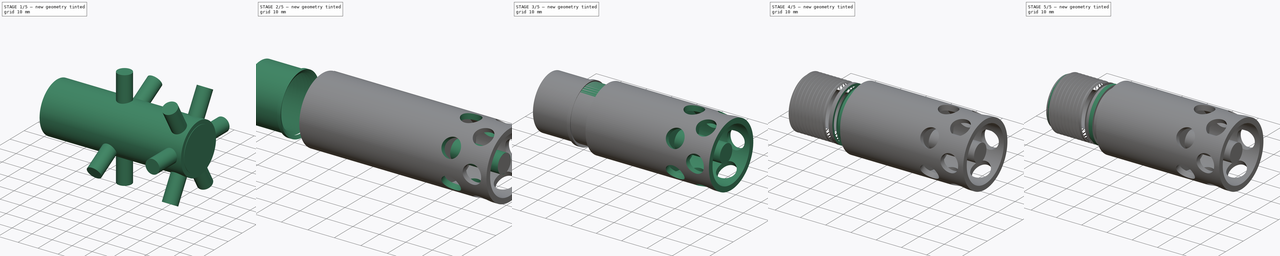
[diagram: build sequence overview — one tinted view per stage of 5, left to right]
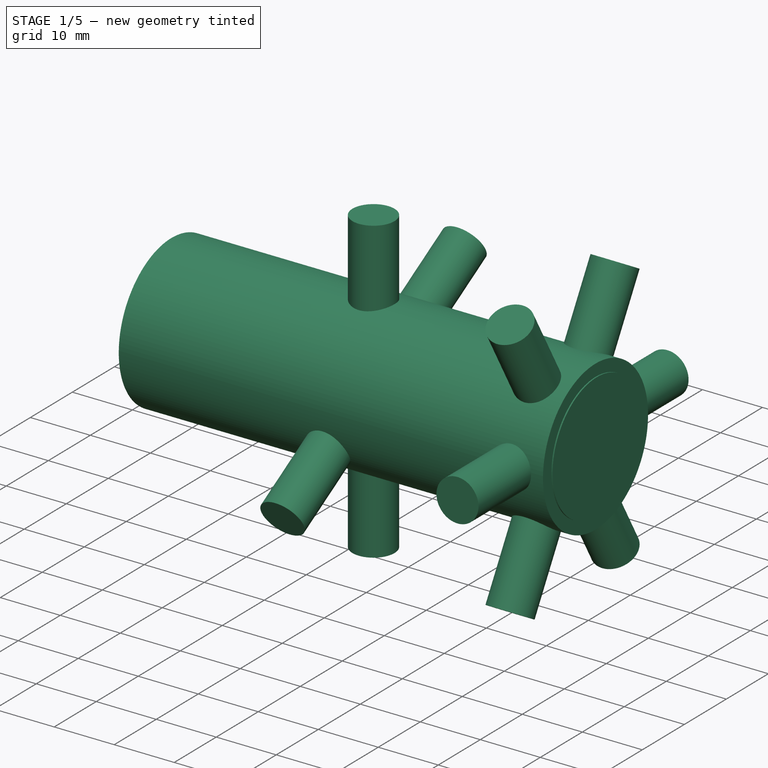
[diagram: stage 1 of 5 — iso view after this stage's code; geometry added in this stage tinted green]
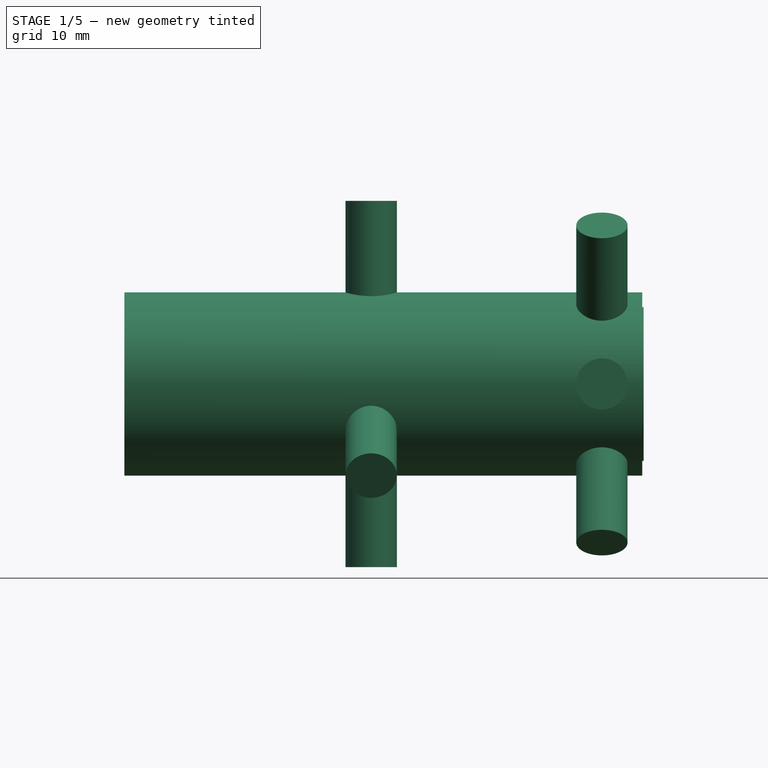
[diagram: stage 1 of 5 — front view after this stage's code; geometry added in this stage tinted green]
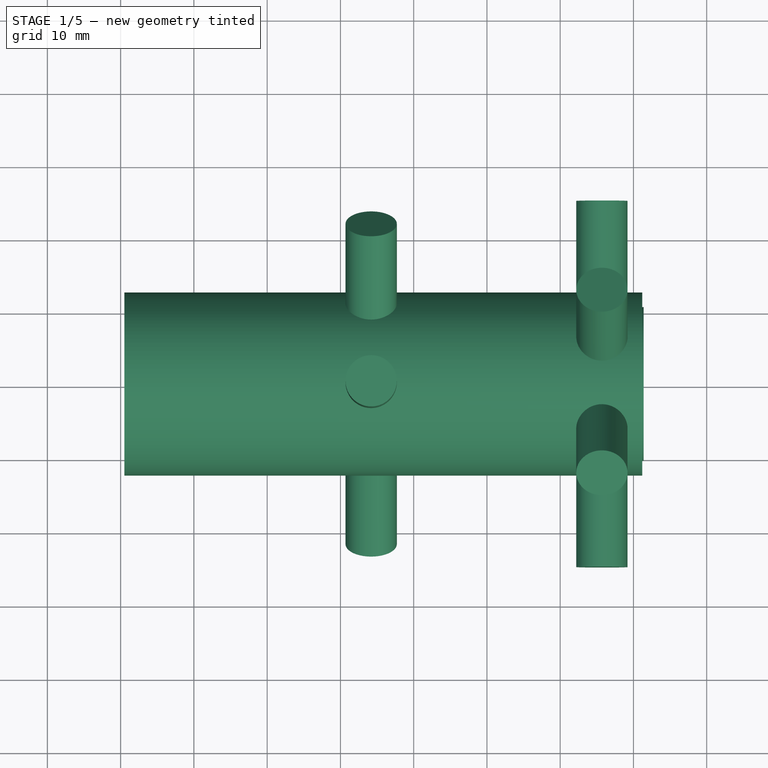
[diagram: stage 1 of 5 — top view after this stage's code; geometry added in this stage tinted green]
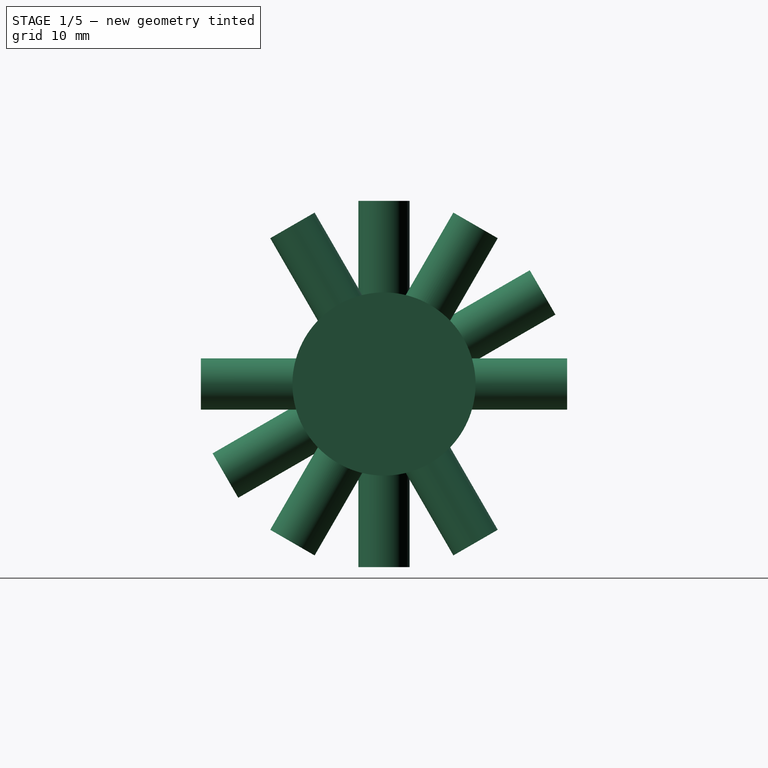
[diagram: stage 1 of 5 — right view after this stage's code; geometry added in this stage tinted green]
FCSTD DOCUMENT  (FreeCAD 0.17R13541 (Git))
Label: ERG-T-01-SH
License: All rights reserved
LicenseURL: http://en.wikipedia.org/wiki/All_rights_reserved
objects: Drawing::FeatureViewPython×66, Part::Cylinder×20, Part::Cut×18, Part::MultiFuse×4, Drawing::FeatureViewPart×4, Part::Helix×2, Sketcher::SketchObject×2, Part::Cone×2, Part::Sweep×2, Drawing::FeaturePage×2, Part::Feature×1
note: 51 computed .brp shape members not serialized (recipe doc carries the construction recipe); baked Part::Feature solids carry a one-line shape summary decoded from their .brp

FEATURE [Part::Cylinder] Cylinder068  label="Cylinder073"
  Angle = 360
  AttacherType = Attacher::AttachEngine3D
  Height = 50
  Placement = pos=(214.2,0,-25) rot=(0,1,0;0rad)
  Radius = 3.5
FEATURE [Drawing::FeatureViewPython] dim088  # drawing view (typed FeaturePython)
  Rotation = 0
  ViewResult = <g> \n  <line x1="244.262000" y1="62.750000" x2="219.353101" y2="62.750000" style="stroke:rgb(255,0,0);stroke-width:0.10" />\n<line x1="244.864312" y1="100.240250" x2="219.353101" y2="100.240250" style="stroke:rgb(255,0,0);stroke-width:0.10" />\n<line x1="220.353101" y1="62.750000" x2="220.353101" y2="100.240250" style="stroke:rgb(255,0,0);stroke-width:0.10" /> \n  <polygon points="220.353101,100.240250 220.853101,98.240250 220.353101,97.740250 219.853101,98.240250" style="fill:rgb(255,0,0);stroke:rgb(255,0,0);stroke-width:0" /><polygon points="220.353101,62.750000 219.853101,64.750000 220.353101,65.250000 220.853101,64.750000" style="fill:rgb(255,0,0);stroke:rgb(255,0,0);stroke-width:0" /> \n  <text x="218.353101" y="81.495125" font-family="inherit" font-size="3.6" fill="rgb(0,0,0)" text-anchor="middle" transform="rotate(-90.000000 218.353101,81.495125)" >25</text> </g>
  Visible = false
  X = 0
  Y = 0
  arrowL1 = 2
  arrowL2 = 0.5
  arrowW = 1
  arrow_scheme = 0
  autoPlaceOffset = 2
  autoPlaceText = true
  click1_x = 220.353
  click1_y = 99.2911
  click2_x = 220.353
  click2_y = 99.2911
  comma_decimal_place = false
  dimension_line_overshoot = 1
  gap_datum_points = 0
  halfDimension_linear = false
  lineColor = rgb(255,0,0)
  strokeWidth = 0.1
  textFormat_linear = %(value)3.1f
  textRenderer_color = rgb(0,0,0)
  textRenderer_family = inherit
  textRenderer_size = 3.6
  unit_custom_scale = 1
  unit_scheme = 0
FEATURE [Drawing::FeatureViewPython] dia020  # drawing view (typed FeaturePython)
  Rotation = 0
  ViewResult = <g>  <circle cx ="244.262000" cy ="94.250000" r="0.250000" stroke="none" fill="rgb(255,0,0)" /> \n<line x1="262.603225" y1="114.471753" x2="243.707743" y2="93.638915" style="stroke:rgb(255,0,0);stroke-width:0.10" />\n<polygon points="244.816257,94.861085 245.789555,96.678415 246.495822,96.712857 246.530264,96.006589" style="fill:rgb(255,0,0);stroke:rgb(255,0,0);stroke-width:0" />\n<polygon points="243.707743,93.638915 242.734445,91.821585 242.028178,91.787143 241.993736,92.493411" style="fill:rgb(255,0,0);stroke:rgb(255,0,0);stroke-width:0" />\n<line x1="262.603225" y1="114.471753" x2="273.009748" y2="114.471753" style="stroke:rgb(255,0,0);stroke-width:0.10" />\n<text x="267.806487" y="112.471753" font-family="inherit" font-size="3.6" fill="rgb(0,0,0)" text-anchor="middle" transform="rotate(0.000000 267.806487,112.471753)" >Ø1.1</text> </g>
  Visible = false
  X = 0
  Y = 0
  arrowL1 = 2
  arrowL2 = 0.5
  arrowW = 1
  arrow_scheme = 0
  autoPlaceOffset = 2
  autoPlaceText = true
  centerPointDia = 0.5
  click1_x = 262.603
  click1_y = 114.472
  click2_x = 273.01
  click2_y = 113.969
  click3_x = 273.01
  click3_y = 113.969
  comma_decimal_place = false
  lineColor = rgb(255,0,0)
  strokeWidth = 0.1
  textFormat_circular = Ø%(value)3.3f
  textRenderer_color = rgb(0,0,0)
  textRenderer_family = inherit
  textRenderer_size = 3.6
  unit_custom_scale = 1.7
  unit_scheme = 0
FEATURE [Drawing::FeatureViewPython] dim090  # drawing view (typed FeaturePython)
  Rotation = 0
  ViewResult = <g> \n  <line x1="179.589000" y1="65.903600" x2="209.559098" y2="65.903600" style="stroke:rgb(255,0,0);stroke-width:0.10" />\n<line x1="180.189000" y1="97.099700" x2="209.559098" y2="97.099700" style="stroke:rgb(255,0,0);stroke-width:0.10" />\n<line x1="208.559098" y1="65.903600" x2="208.559098" y2="97.099700" style="stroke:rgb(255,0,0);stroke-width:0.10" /> \n  <polygon points="208.559098,97.099700 209.059098,95.099700 208.559098,94.599700 208.059098,95.099700" style="fill:rgb(255,0,0);stroke:rgb(255,0,0);stroke-width:0" /><polygon points="208.559098,65.903600 208.059098,67.903600 208.559098,68.403600 209.059098,67.903600" style="fill:rgb(255,0,0);stroke:rgb(255,0,0);stroke-width:0" /> \n  <text x="206.559098" y="81.501650" font-family="inherit" font-size="3.6" fill="rgb(0,0,0)" text-anchor="middle" transform="rotate(-90.000000 206.559098,81.501650)" >20.8</text> </g>
  Visible = false
  X = 0
  Y = 0
  arrowL1 = 2
  arrowL2 = 0.5
  arrowW = 1
  arrow_scheme = 0
  autoPlaceOffset = 2
  autoPlaceText = true
  click1_x = 208.559
  click1_y = 92.6505
  click2_x = 208.559
  click2_y = 92.6505
  comma_decimal_place = false
  dimension_line_overshoot = 1
  gap_datum_points = 0
  halfDimension_linear = false
  lineColor = rgb(255,0,0)
  strokeWidth = 0.1
  textFormat_linear = %(value)3.1f
  textRenderer_color = rgb(0,0,0)
  textRenderer_family = inherit
  textRenderer_size = 3.6
  unit_custom_scale = 1.7
  unit_scheme = 0
FEATURE [Drawing::FeatureViewPython] dim089  # drawing view (typed FeaturePython)
  Rotation = 0
  ViewResult = <g> \n  <line x1="181.725000" y1="97.079000" x2="164.616125" y2="97.079000" style="stroke:rgb(255,0,0);stroke-width:0.10" />\n<line x1="180.964500" y1="95.763560" x2="164.616125" y2="95.763560" style="stroke:rgb(255,0,0);stroke-width:0.10" />\n<line x1="165.616125" y1="97.079000" x2="165.616125" y2="95.763560" style="stroke:rgb(255,0,0);stroke-width:0.10" /> \n  <polygon points="165.616125,95.763560 166.116125,93.763560 165.616125,93.263560 165.116125,93.763560" style="fill:rgb(255,0,0);stroke:rgb(255,0,0);stroke-width:0" /><polygon points="165.616125,97.079000 165.116125,99.079000 165.616125,99.579000 166.116125,99.079000" style="fill:rgb(255,0,0);stroke:rgb(255,0,0);stroke-width:0" /> \n  <text x="163.616125" y="96.421280" font-family="inherit" font-size="3.6" fill="rgb(0,0,0)" text-anchor="middle" transform="rotate(-90.000000 163.616125,96.421280)" >1</text> </g>
  Visible = false
  X = 0
  Y = 0
  arrowL1 = 2
  arrowL2 = 0.5
  arrowW = 1
  arrow_scheme = 0
  autoPlaceOffset = 2
  autoPlaceText = true
  click1_x = 165.616
  click1_y = 96.2869
  click2_x = 165.616
  click2_y = 96.2869
  comma_decimal_place = false
  dimension_line_overshoot = 1
  gap_datum_points = 0
  halfDimension_linear = false
  lineColor = rgb(255,0,0)
  strokeWidth = 0.1
  textFormat_linear = 1
  textRenderer_color = rgb(0,0,0)
  textRenderer_family = inherit
  textRenderer_size = 3.6
  unit_custom_scale = 1.7
  unit_scheme = 0
FEATURE [Drawing::FeatureViewPython] dim091  # drawing view (typed FeaturePython)
  Rotation = 0
  ViewResult = <g> \n  <line x1="95.475000" y1="63.220100" x2="95.475000" y2="37.514572" style="stroke:rgb(255,0,0);stroke-width:0.10" />\n<line x1="201.525000" y1="67.972880" x2="201.525000" y2="37.514572" style="stroke:rgb(255,0,0);stroke-width:0.10" />\n<line x1="95.475000" y1="38.514572" x2="201.525000" y2="38.514572" style="stroke:rgb(255,0,0);stroke-width:0.10" /> \n  <polygon points="201.525000,38.514572 199.525000,38.014572 199.025000,38.514572 199.525000,39.014572" style="fill:rgb(255,0,0);stroke:rgb(255,0,0);stroke-width:0" /><polygon points="95.475000,38.514572 97.475000,39.014572 97.975000,38.514572 97.475000,38.014572" style="fill:rgb(255,0,0);stroke:rgb(255,0,0);stroke-width:0" /> \n  <text x="148.500000" y="36.514572" font-family="inherit" font-size="3.6" fill="rgb(0,0,0)" text-anchor="middle" transform="rotate(0.000000 148.500000,36.514572)" >70.7</text> </g>
  Visible = false
  X = 0
  Y = 0
  arrowL1 = 2
  arrowL2 = 0.5
  arrowW = 1
  arrow_scheme = 0
  autoPlaceOffset = 2
  autoPlaceText = true
  click1_x = 197.195
  click1_y = 38.5146
  click2_x = 197.195
  click2_y = 38.5146
  comma_decimal_place = false
  dimension_line_overshoot = 1
  gap_datum_points = 0
  halfDimension_linear = false
  lineColor = rgb(255,0,0)
  strokeWidth = 0.1
  textFormat_linear = %(value)3.3f
  textRenderer_color = rgb(0,0,0)
  textRenderer_family = inherit
  textRenderer_size = 3.6
  unit_custom_scale = 1.7
  unit_scheme = 0
FEATURE [Drawing::FeatureViewPython] dim093  # drawing view (typed FeaturePython)
  Rotation = 0
  ViewResult = <g> \n  <line x1="95.475000" y1="62.750000" x2="84.981082" y2="62.750000" style="stroke:rgb(255,0,0);stroke-width:0.10" />\n<line x1="95.475000" y1="100.250000" x2="84.981082" y2="100.250000" style="stroke:rgb(255,0,0);stroke-width:0.10" />\n<line x1="85.981082" y1="62.750000" x2="85.981082" y2="100.250000" style="stroke:rgb(255,0,0);stroke-width:0.10" /> \n  <polygon points="85.981082,100.250000 86.481082,98.250000 85.981082,97.750000 85.481082,98.250000" style="fill:rgb(255,0,0);stroke:rgb(255,0,0);stroke-width:0" /><polygon points="85.981082,62.750000 85.481082,64.750000 85.981082,65.250000 86.481082,64.750000" style="fill:rgb(255,0,0);stroke:rgb(255,0,0);stroke-width:0" /> \n  <text x="83.981082" y="81.500000" font-family="inherit" font-size="3.6" fill="rgb(0,0,0)" text-anchor="middle" transform="rotate(-90.000000 83.981082,81.500000)" >25</text> </g>
  Visible = false
  X = 0
  Y = 0
  arrowL1 = 2
  arrowL2 = 0.5
  arrowW = 1
  arrow_scheme = 0
  autoPlaceOffset = 2
  autoPlaceText = true
  click1_x = 85.9811
  click1_y = 101.227
  click2_x = 85.9811
  click2_y = 101.227
  comma_decimal_place = false
  dimension_line_overshoot = 1
  gap_datum_points = 0
  halfDimension_linear = false
  lineColor = rgb(255,0,0)
  strokeWidth = 0.1
  textFormat_linear = %(value)3.3f
  textRenderer_color = rgb(0,0,0)
  textRenderer_family = inherit
  textRenderer_size = 3.6
  unit_custom_scale = 1.7
  unit_scheme = 0
FEATURE [Part::Cylinder] Cylinder066  label="Cylinder071"
  Angle = 360
  AttacherType = Attacher::AttachEngine3D
  Height = 50
  Placement = pos=(214.2,21.6506,12.5) rot=(1,0,0;2.0944rad)
  Radius = 3.5
FEATURE [Drawing::FeatureViewPython] dia019  # drawing view (typed FeaturePython)
  Rotation = 0
  ViewResult = <g>  <circle cx ="52.693090" cy ="81.339834" r="0.250000" stroke="none" fill="rgb(255,0,0)" /> \n<line x1="65.311048" y1="134.419249" x2="48.395157" y2="63.259905" style="stroke:rgb(255,0,0);stroke-width:0.10" />\n<polygon points="56.991023,99.419762 57.014920,97.358348 56.412839,96.987541 56.042031,97.589622" style="fill:rgb(255,0,0);stroke:rgb(255,0,0);stroke-width:0" />\n<polygon points="48.395157,63.259905 48.371260,65.321319 48.973341,65.692127 49.344149,65.090046" style="fill:rgb(255,0,0);stroke:rgb(255,0,0);stroke-width:0" />\n<line x1="65.311048" y1="134.419249" x2="82.271669" y2="134.419249" style="stroke:rgb(255,0,0);stroke-width:0.10" />\n<text x="73.791358" y="132.419249" font-family="inherit" font-size="3.6" fill="rgb(0,0,0)" text-anchor="middle" transform="rotate(0.000000 73.791358,132.419249)" >Ø 25</text> </g>
  Visible = false
  X = 0
  Y = 0
  arrowL1 = 2
  arrowL2 = 0.5
  arrowW = 1
  arrow_scheme = 0
  autoPlaceOffset = 2
  autoPlaceText = true
  centerPointDia = 0.5
  click1_x = 65.311
  click1_y = 134.419
  click2_x = 82.2717
  click2_y = 134.672
  click3_x = 82.2717
  click3_y = 134.672
  comma_decimal_place = false
  lineColor = rgb(255,0,0)
  strokeWidth = 0.1
  textFormat_circular = Ø%(value)3.0f
  textRenderer_color = rgb(0,0,0)
  textRenderer_family = inherit
  textRenderer_size = 3.6
  unit_custom_scale = 1.7
  unit_scheme = 0
FEATURE [Part::Cylinder] Cylinder069  label="Cylinder074"
  Angle = 360
  AttacherType = Attacher::AttachEngine3D
  Height = 50
  Placement = pos=(214.2,21.6506,12.5) rot=(1,0,0;2.0944rad)
  Radius = 3.5
FEATURE [Part::Cylinder] Cylinder057  label="Cylinder063"
  Angle = 360
  AttacherType = Attacher::AttachEngine3D
  Height = 70.7
  Placement = pos=(180.5,0,0) rot=(0,1,0;1.5708rad)
  Radius = 12.5
FEATURE [Drawing::FeatureViewPython] dim076  # drawing view (typed FeaturePython)
  Rotation = 0
  ViewResult = <g> \n  <line x1="168.525000" y1="97.100000" x2="168.525000" y2="109.514916" style="stroke:rgb(255,0,0);stroke-width:0.10" />\n<line x1="170.775000" y1="96.708950" x2="170.775000" y2="109.514916" style="stroke:rgb(255,0,0);stroke-width:0.10" />\n<line x1="168.525000" y1="108.514916" x2="170.775000" y2="108.514916" style="stroke:rgb(255,0,0);stroke-width:0.10" /> \n  <polygon points="170.775000,108.514916 172.775000,109.014916 173.275000,108.514916 172.775000,108.014916" style="fill:rgb(255,0,0);stroke:rgb(255,0,0);stroke-width:0" /><polygon points="168.525000,108.514916 166.525000,108.014916 166.025000,108.514916 166.525000,109.014916" style="fill:rgb(255,0,0);stroke:rgb(255,0,0);stroke-width:0" /> \n  <text x="169.650000" y="106.514916" font-family="inherit" font-size="3.6" fill="rgb(0,0,0)" text-anchor="middle" transform="rotate(0.000000 169.650000,106.514916)" >1.5</text> </g>
  Visible = false
  X = 0
  Y = 0
  arrowL1 = 2
  arrowL2 = 0.5
  arrowW = 1
  arrow_scheme = 0
  autoPlaceOffset = 2
  autoPlaceText = true
  click1_x = 170.148
  click1_y = 108.515
  click2_x = 170.148
  click2_y = 108.515
  comma_decimal_place = false
  dimension_line_overshoot = 1
  gap_datum_points = 0
  halfDimension_linear = false
  lineColor = rgb(255,0,0)
  strokeWidth = 0.1
  textFormat_linear = %(value)3.3f
  textRenderer_color = rgb(0,0,0)
  textRenderer_family = inherit
  textRenderer_size = 3.6
  unit_custom_scale = 1
  unit_scheme = 0
FEATURE [Drawing::FeatureViewPython] dim077  # drawing view (typed FeaturePython)
  Rotation = 0
  ViewResult = <g> \n  <line x1="173.025000" y1="97.100000" x2="173.025000" y2="116.291672" style="stroke:rgb(255,0,0);stroke-width:0.10" />\n<line x1="175.275000" y1="97.100000" x2="175.275000" y2="116.291672" style="stroke:rgb(255,0,0);stroke-width:0.10" />\n<line x1="173.025000" y1="115.291672" x2="175.275000" y2="115.291672" style="stroke:rgb(255,0,0);stroke-width:0.10" /> \n  <polygon points="175.275000,115.291672 177.275000,115.791672 177.775000,115.291672 177.275000,114.791672" style="fill:rgb(255,0,0);stroke:rgb(255,0,0);stroke-width:0" /><polygon points="173.025000,115.291672 171.025000,114.791672 170.525000,115.291672 171.025000,115.791672" style="fill:rgb(255,0,0);stroke:rgb(255,0,0);stroke-width:0" /> \n  <text x="174.150000" y="113.291672" font-family="inherit" font-size="3.6" fill="rgb(0,0,0)" text-anchor="middle" transform="rotate(0.000000 174.150000,113.291672)" >1.5</text> </g>
  Visible = false
  X = 0
  Y = 0
  arrowL1 = 2
  arrowL2 = 0.5
  arrowW = 1
  arrow_scheme = 0
  autoPlaceOffset = 2
  autoPlaceText = true
  click1_x = 174.476
  click1_y = 115.292
  click2_x = 174.476
  click2_y = 115.292
  comma_decimal_place = false
  dimension_line_overshoot = 1
  gap_datum_points = 0
  halfDimension_linear = false
  lineColor = rgb(255,0,0)
  strokeWidth = 0.1
  textFormat_linear = %(value)3.3f
  textRenderer_color = rgb(0,0,0)
  textRenderer_family = inherit
  textRenderer_size = 3.6
  unit_custom_scale = 1
  unit_scheme = 0
FEATURE [Drawing::FeatureViewPython] dim078  # drawing view (typed FeaturePython)
  Rotation = 0
  ViewResult = <g> \n  <line x1="177.525000" y1="97.100000" x2="177.525000" y2="109.514916" style="stroke:rgb(255,0,0);stroke-width:0.10" />\n<line x1="180.189000" y1="97.099700" x2="180.189000" y2="109.514916" style="stroke:rgb(255,0,0);stroke-width:0.10" />\n<line x1="177.525000" y1="108.514916" x2="180.189000" y2="108.514916" style="stroke:rgb(255,0,0);stroke-width:0.10" /> \n  <polygon points="180.189000,108.514916 182.189000,109.014916 182.689000,108.514916 182.189000,108.014916" style="fill:rgb(255,0,0);stroke:rgb(255,0,0);stroke-width:0" /><polygon points="177.525000,108.514916 175.525000,108.014916 175.025000,108.514916 175.525000,109.014916" style="fill:rgb(255,0,0);stroke:rgb(255,0,0);stroke-width:0" /> \n  <text x="178.857000" y="106.514916" font-family="inherit" font-size="3.6" fill="rgb(0,0,0)" text-anchor="middle" transform="rotate(0.000000 178.857000,106.514916)" >1.8</text> </g>
  Visible = false
  X = 0
  Y = 0
  arrowL1 = 2
  arrowL2 = 0.5
  arrowW = 1
  arrow_scheme = 0
  autoPlaceOffset = 2
  autoPlaceText = true
  click1_x = 180.01
  click1_y = 108.515
  click2_x = 180.01
  click2_y = 108.515
  comma_decimal_place = false
  dimension_line_overshoot = 1
  gap_datum_points = 0
  halfDimension_linear = false
  lineColor = rgb(255,0,0)
  strokeWidth = 0.1
  textFormat_linear = %(value)3.1f
  textRenderer_color = rgb(0,0,0)
  textRenderer_family = inherit
  textRenderer_size = 3.6
  unit_custom_scale = 1
  unit_scheme = 0
FEATURE [Drawing::FeatureViewPython] dim079  # drawing view (typed FeaturePython)
  Rotation = 0
  ViewResult = <g> \n  <line x1="170.775000" y1="65.900000" x2="170.775000" y2="57.039320" style="stroke:rgb(255,0,0);stroke-width:0.10" />\n<line x1="173.025000" y1="65.900000" x2="173.025000" y2="57.039320" style="stroke:rgb(255,0,0);stroke-width:0.10" />\n<line x1="170.775000" y1="58.039320" x2="173.025000" y2="58.039320" style="stroke:rgb(255,0,0);stroke-width:0.10" /> \n  <polygon points="173.025000,58.039320 175.025000,58.539320 175.525000,58.039320 175.025000,57.539320" style="fill:rgb(255,0,0);stroke:rgb(255,0,0);stroke-width:0" /><polygon points="170.775000,58.039320 168.775000,57.539320 168.275000,58.039320 168.775000,58.539320" style="fill:rgb(255,0,0);stroke:rgb(255,0,0);stroke-width:0" /> \n  <text x="171.900000" y="56.039320" font-family="inherit" font-size="3.6" fill="rgb(0,0,0)" text-anchor="middle" transform="rotate(0.000000 171.900000,56.039320)" >1.5</text> </g>
  Visible = false
  X = 0
  Y = 0
  arrowL1 = 2
  arrowL2 = 0.5
  arrowW = 1
  arrow_scheme = 0
  autoPlaceOffset = 2
  autoPlaceText = true
  click1_x = 173.182
  click1_y = 58.0393
  click2_x = 173.182
  click2_y = 58.0393
  comma_decimal_place = false
  dimension_line_overshoot = 1
  gap_datum_points = 0
  halfDimension_linear = false
  lineColor = rgb(255,0,0)
  strokeWidth = 0.1
  textFormat_linear = %(value)3.3f
  textRenderer_color = rgb(0,0,0)
  textRenderer_family = inherit
  textRenderer_size = 3.6
  unit_custom_scale = 1
  unit_scheme = 0
FEATURE [Drawing::FeatureViewPython] dim080  # drawing view (typed FeaturePython)
  Rotation = 0
  ViewResult = <g> \n  <line x1="175.275000" y1="65.900000" x2="175.275000" y2="50.290253" style="stroke:rgb(255,0,0);stroke-width:0.10" />\n<line x1="177.525000" y1="65.900000" x2="177.525000" y2="50.290253" style="stroke:rgb(255,0,0);stroke-width:0.10" />\n<line x1="175.275000" y1="51.290253" x2="177.525000" y2="51.290253" style="stroke:rgb(255,0,0);stroke-width:0.10" /> \n  <polygon points="177.525000,51.290253 179.525000,51.790253 180.025000,51.290253 179.525000,50.790253" style="fill:rgb(255,0,0);stroke:rgb(255,0,0);stroke-width:0" /><polygon points="175.275000,51.290253 173.275000,50.790253 172.775000,51.290253 173.275000,51.790253" style="fill:rgb(255,0,0);stroke:rgb(255,0,0);stroke-width:0" /> \n  <text x="176.400000" y="49.290253" font-family="inherit" font-size="3.6" fill="rgb(0,0,0)" text-anchor="middle" transform="rotate(0.000000 176.400000,49.290253)" >1.5</text> </g>
  Visible = false
  X = 0
  Y = 0
  arrowL1 = 2
  arrowL2 = 0.5
  arrowW = 1
  arrow_scheme = 0
  autoPlaceOffset = 2
  autoPlaceText = true
  click1_x = 177.679
  click1_y = 51.2903
  click2_x = 177.679
  click2_y = 51.2903
  comma_decimal_place = false
  dimension_line_overshoot = 1
  gap_datum_points = 0
  halfDimension_linear = false
  lineColor = rgb(255,0,0)
  strokeWidth = 0.1
  textFormat_linear = %(value)3.3f
  textRenderer_color = rgb(0,0,0)
  textRenderer_family = inherit
  textRenderer_size = 3.6
  unit_custom_scale = 1
  unit_scheme = 0
FEATURE [Drawing::FeatureViewPython] dim081  # drawing view (typed FeaturePython)
  Rotation = 0
  ViewResult = <g> \n  <line x1="170.775000" y1="65.900000" x2="163.810101" y2="65.900000" style="stroke:rgb(255,0,0);stroke-width:0.10" />\n<line x1="170.775000" y1="67.100000" x2="163.810101" y2="67.100000" style="stroke:rgb(255,0,0);stroke-width:0.10" />\n<line x1="164.810101" y1="65.900000" x2="164.810101" y2="67.100000" style="stroke:rgb(255,0,0);stroke-width:0.10" /> \n  <polygon points="164.810101,67.100000 164.310101,69.100000 164.810101,69.600000 165.310101,69.100000" style="fill:rgb(255,0,0);stroke:rgb(255,0,0);stroke-width:0" /><polygon points="164.810101,65.900000 165.310101,63.900000 164.810101,63.400000 164.310101,63.900000" style="fill:rgb(255,0,0);stroke:rgb(255,0,0);stroke-width:0" /> \n  <text x="162.810101" y="66.500000" font-family="inherit" font-size="3.6" fill="rgb(0,0,0)" text-anchor="middle" transform="rotate(-90.000000 162.810101,66.500000)" >0.8</text> </g>
  Visible = false
  X = 0
  Y = 0
  arrowL1 = 2
  arrowL2 = 0.5
  arrowW = 1
  arrow_scheme = 0
  autoPlaceOffset = 2
  autoPlaceText = true
  click1_x = 164.81
  click1_y = 67.5092
  click2_x = 164.81
  click2_y = 67.5092
  comma_decimal_place = false
  dimension_line_overshoot = 1
  gap_datum_points = 0
  halfDimension_linear = false
  lineColor = rgb(255,0,0)
  strokeWidth = 0.1
  textFormat_linear = %(value)3.3f
  textRenderer_color = rgb(0,0,0)
  textRenderer_family = inherit
  textRenderer_size = 3.6
  unit_custom_scale = 1
  unit_scheme = 0
FEATURE [Part::Cylinder] Cylinder063  label="Cylinder068"
  Angle = 360
  AttacherType = Attacher::AttachEngine3D
  Height = 20.2
  Placement = pos=(231.2,0,0) rot=(0,1,0;1.5708rad)
  Radius = 10.5
FEATURE [Drawing::FeatureViewPython] dia016  # drawing view (typed FeaturePython)
  Rotation = 0
  ViewResult = <g>  <circle cx ="52.737500" cy ="81.500000" r="0.250000" stroke="none" fill="rgb(255,0,0)" /> \n<line x1="68.095627" y1="45.059560" x2="50.698534" y2="86.337883" style="stroke:rgb(255,0,0);stroke-width:0.10" />\n<polygon points="54.776466,76.662117 53.538966,78.310932 53.805530,78.965871 54.460468,78.699307" style="fill:rgb(255,0,0);stroke:rgb(255,0,0);stroke-width:0" />\n<polygon points="50.698534,86.337883 51.936034,84.689068 51.669470,84.034129 51.014532,84.300693" style="fill:rgb(255,0,0);stroke:rgb(255,0,0);stroke-width:0" />\n<line x1="68.095627" y1="45.059560" x2="77.968227" y2="45.059560" style="stroke:rgb(255,0,0);stroke-width:0.10" />\n<text x="73.031927" y="43.059560" font-family="inherit" font-size="3.6" fill="rgb(0,0,0)" text-anchor="middle" transform="rotate(0.000000 73.031927,43.059560)" >Ø7</text> </g>
  Visible = false
  X = 0
  Y = 0
  arrowL1 = 2
  arrowL2 = 0.5
  arrowW = 1
  arrow_scheme = 0
  autoPlaceOffset = 2
  autoPlaceText = true
  centerPointDia = 0.5
  click1_x = 68.0956
  click1_y = 45.0596
  click2_x = 77.9682
  click2_y = 44.8064
  click3_x = 77.9682
  click3_y = 44.8064
  comma_decimal_place = false
  lineColor = rgb(255,0,0)
  strokeWidth = 0.1
  textFormat_circular = Ø%(value)3.3f
  textRenderer_color = rgb(0,0,0)
  textRenderer_family = inherit
  textRenderer_size = 3.6
  unit_custom_scale = 1
  unit_scheme = 0
FEATURE [Drawing::FeatureViewPython] dia018  # drawing view (typed FeaturePython)
  Rotation = 0
  ViewResult = <g>  <circle cx ="117.203125" cy ="81.501965" r="0.250000" stroke="none" fill="rgb(255,0,0)" /> \n<line x1="128.596947" y1="95.941423" x2="113.964499" y2="77.397635" style="stroke:rgb(255,0,0);stroke-width:0.10" />\n<polygon points="120.441751,85.606296 119.595365,83.726500 118.893122,83.643709 118.810331,84.345952" style="fill:rgb(255,0,0);stroke:rgb(255,0,0);stroke-width:0" />\n<polygon points="113.964499,77.397635 114.810885,79.277431 115.513128,79.360222 115.595919,78.657979" style="fill:rgb(255,0,0);stroke:rgb(255,0,0);stroke-width:0" />\n<line x1="128.596947" y1="95.941423" x2="142.519844" y2="95.941423" style="stroke:rgb(255,0,0);stroke-width:0.10" />\n<text x="135.558395" y="93.941423" font-family="inherit" font-size="3.6" fill="rgb(0,0,0)" text-anchor="middle" transform="rotate(0.000000 135.558395,93.941423)" >Ø7</text> </g>
  Visible = false
  X = 0
  Y = 0
  arrowL1 = 2
  arrowL2 = 0.5
  arrowW = 1
  arrow_scheme = 0
  autoPlaceOffset = 2
  autoPlaceText = true
  centerPointDia = 0.5
  click1_x = 128.597
  click1_y = 95.9414
  click2_x = 142.52
  click2_y = 95.9414
  click3_x = 140.52
  click3_y = 174773072
  comma_decimal_place = false
  lineColor = rgb(255,0,0)
  strokeWidth = 0.1
  textFormat_circular = Ø%(value)3.1f
  textRenderer_color = rgb(0,0,0)
  textRenderer_family = inherit
  textRenderer_size = 3.6
  unit_custom_scale = 1
  unit_scheme = 0
FEATURE [Drawing::FeatureViewPython] dia021  # drawing view (typed FeaturePython)
  Rotation = 0
  ViewResult = <g>  <circle cx ="244.262000" cy ="68.750000" r="0.250000" stroke="none" fill="rgb(255,0,0)" /> \n<line x1="255.349161" y1="51.798917" x2="243.810412" y2="69.440430" style="stroke:rgb(255,0,0);stroke-width:0.10" />\n<polygon points="244.713588,68.059570 246.226789,66.659491 246.082037,65.967359 245.389905,66.112111" style="fill:rgb(255,0,0);stroke:rgb(255,0,0);stroke-width:0" />\n<polygon points="243.810412,69.440430 242.297211,70.840509 242.441963,71.532641 243.134095,71.387889" style="fill:rgb(255,0,0);stroke:rgb(255,0,0);stroke-width:0" />\n<line x1="255.349161" y1="51.798917" x2="265.607212" y2="51.798917" style="stroke:rgb(255,0,0);stroke-width:0.10" />\n<text x="260.478187" y="49.798917" font-family="inherit" font-size="3.6" fill="rgb(0,0,0)" text-anchor="middle" transform="rotate(0.000000 260.478187,49.798917)" >Ø1.1</text> </g>
  Visible = false
  X = 0
  Y = 0
  arrowL1 = 2
  arrowL2 = 0.5
  arrowW = 1
  arrow_scheme = 0
  autoPlaceOffset = 2
  autoPlaceText = true
  centerPointDia = 0.5
  click1_x = 255.349
  click1_y = 51.7989
  click2_x = 265.607
  click2_y = 52.138
  click3_x = 265.607
  click3_y = 52.138
  comma_decimal_place = false
  lineColor = rgb(255,0,0)
  strokeWidth = 0.1
  textFormat_circular = Ø%(value)3.3f
  textRenderer_color = rgb(0,0,0)
  textRenderer_family = inherit
  textRenderer_size = 3.6
  unit_custom_scale = 1
  unit_scheme = 0
FEATURE [Drawing::FeatureViewPython] dim075  # drawing view (typed FeaturePython)
  Rotation = 0
  ViewResult = <g> \n  <line x1="95.475000" y1="62.750000" x2="95.475000" y2="51.561912" style="stroke:rgb(255,0,0);stroke-width:0.10" />\n<line x1="168.525000" y1="62.750000" x2="168.525000" y2="51.561912" style="stroke:rgb(255,0,0);stroke-width:0.10" />\n<line x1="95.475000" y1="52.561912" x2="168.525000" y2="52.561912" style="stroke:rgb(255,0,0);stroke-width:0.10" /> \n  <polygon points="168.525000,52.561912 166.525000,52.061912 166.025000,52.561912 166.525000,53.061912" style="fill:rgb(255,0,0);stroke:rgb(255,0,0);stroke-width:0" /><polygon points="95.475000,52.561912 97.475000,53.061912 97.975000,52.561912 97.475000,52.061912" style="fill:rgb(255,0,0);stroke:rgb(255,0,0);stroke-width:0" /> \n  <text x="132.000000" y="50.561912" font-family="inherit" font-size="3.6" fill="rgb(0,0,0)" text-anchor="middle" transform="rotate(0.000000 132.000000,50.561912)" >48.7</text> </g>
  Visible = false
  X = 0
  Y = 0
  arrowL1 = 2
  arrowL2 = 0.5
  arrowW = 1
  arrow_scheme = 0
  autoPlaceOffset = 2
  autoPlaceText = true
  click1_x = 167.859
  click1_y = 52.5619
  click2_x = 167.859
  click2_y = 52.5619
  comma_decimal_place = false
  dimension_line_overshoot = 1
  gap_datum_points = 0
  halfDimension_linear = false
  lineColor = rgb(255,0,0)
  strokeWidth = 0.1
  textFormat_linear = %(value)3.3f
  textRenderer_color = rgb(0,0,0)
  textRenderer_family = inherit
  textRenderer_size = 3.6
  unit_custom_scale = 1
  unit_scheme = 0
FEATURE [Part::Cylinder] Cylinder055  label="Cylinder059"
  Angle = 360
  AttacherType = Attacher::AttachEngine3D
  Height = 22
  Placement = pos=(180.5,0,0) rot=(0,1,0;1.5708rad)
  Radius = 10.4
FEATURE [Part::Cylinder] Cylinder065  label="Cylinder070"
  Angle = 360
  AttacherType = Attacher::AttachEngine3D
  Height = 50
  Placement = pos=(214.2,-21.6506,12.5) rot=(-1,0,0;2.0944rad)
  Radius = 3.5
FEATURE [Part::Cylinder] Cylinder064  label="Cylinder069"
  Angle = 360
  AttacherType = Attacher::AttachEngine3D
  Height = 50
  Placement = pos=(214.2,0,-25) rot=(0,1,0;0rad)
  Radius = 3.5
FEATURE [Part::MultiFuse] Fusion012
  Placement = pos=(31.5,0,0) rot=(1,0,0;0.523599rad)
  Shapes = -> [Cylinder064,Cylinder065,Cylinder066]
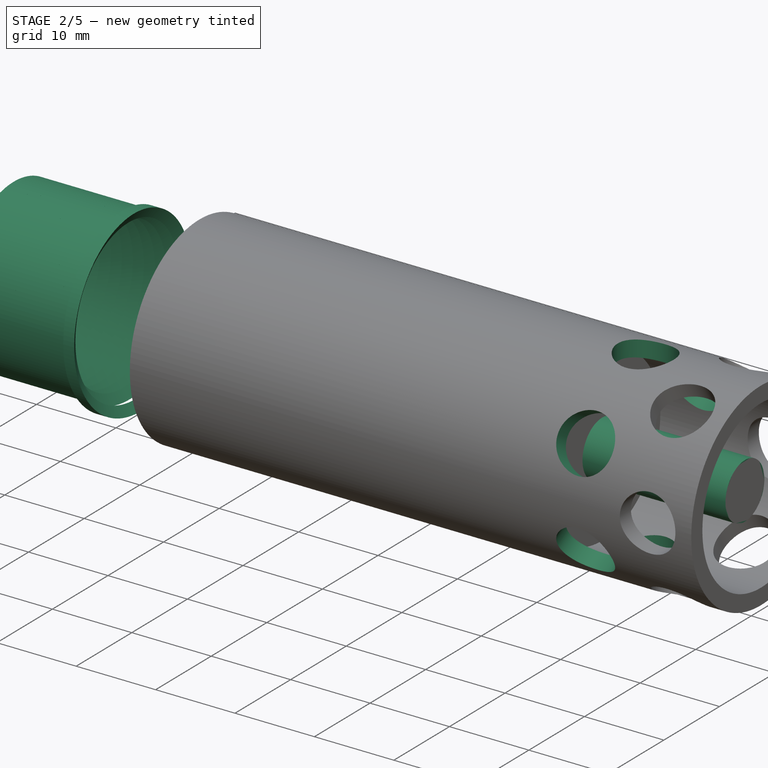
[diagram: stage 2 of 5 — iso view after this stage's code; geometry added in this stage tinted green]
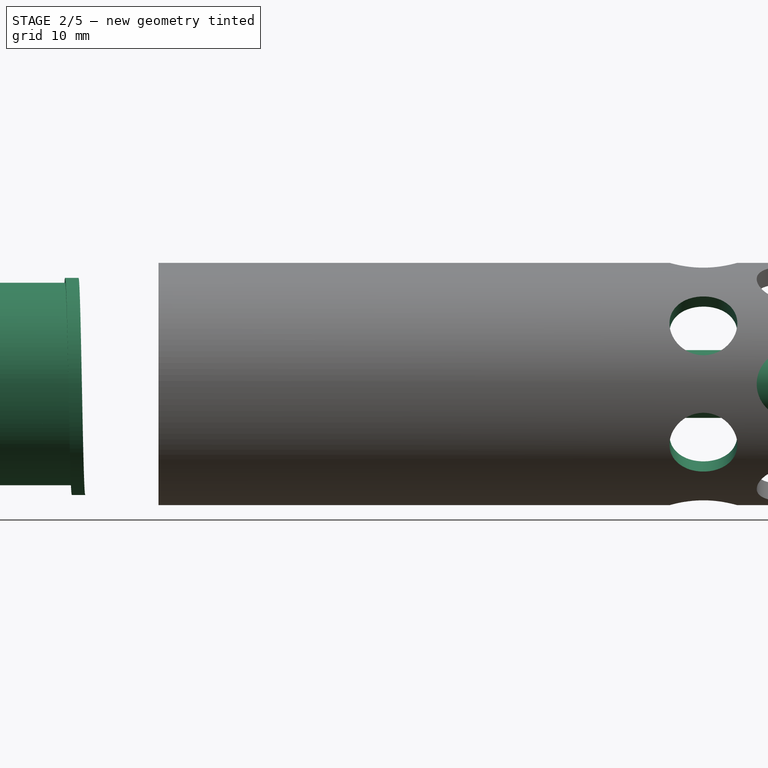
[diagram: stage 2 of 5 — front view after this stage's code; geometry added in this stage tinted green]
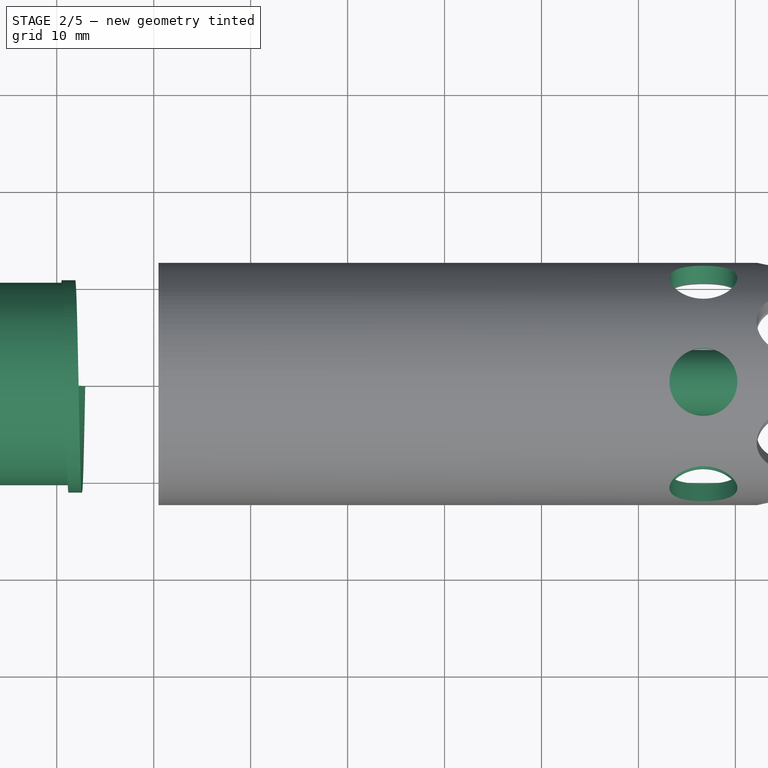
[diagram: stage 2 of 5 — top view after this stage's code; geometry added in this stage tinted green]
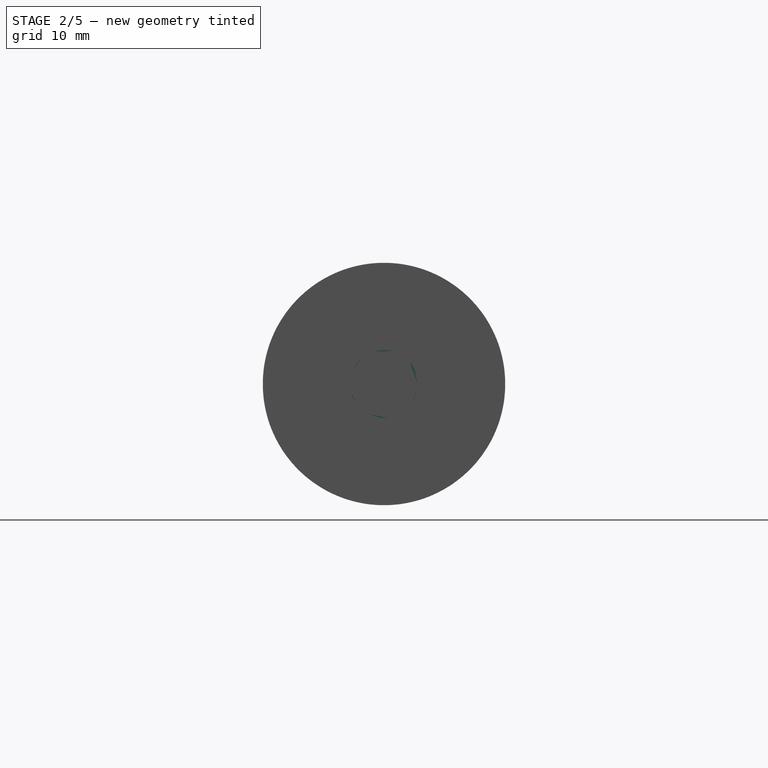
[diagram: stage 2 of 5 — right view after this stage's code; geometry added in this stage tinted green]
FEATURE [Part::Cylinder] Cylinder067  label="Cylinder072"
  Angle = 360
  AttacherType = Attacher::AttachEngine3D
  Height = 50
  Placement = pos=(214.2,-21.6506,12.5) rot=(-1,0,0;2.0944rad)
  Radius = 3.5
FEATURE [Part::Cylinder] Cylinder059  label="Cylinder057"
  Angle = 360
  AttacherType = Attacher::AttachEngine3D
  Height = 18
  Placement = pos=(231.2,0,0) rot=(0,1,0;1.5708rad)
  Radius = 3.5
FEATURE [Part::MultiFuse] Fusion013
  Placement = pos=(22.5,0,0) rot=(1,0,0;0rad)
  Shapes = -> [Cylinder068,Cylinder067,Cylinder069]
FEATURE [Part::Sweep] Sweep014
  Frenet = true
  Sections = -> [Sketch021]
  Solid = true
  Spine = -> Helix017
  Transition = 1
FEATURE [Part::Sweep] Sweep015
  Frenet = true
  Sections = -> [Sketch022]
  Solid = true
  Spine = -> Helix018
  Transition = 1
FEATURE [Part::Cut] Cut052
  Base = -> Cylinder057
  Tool = -> Cylinder063
FEATURE [Part::Cut] Cut053
  Base = -> Cut052
  Tool = -> Fusion012
FEATURE [Part::Cut] Cut054
  Base = -> Cut053
  Tool = -> Fusion013
FEATURE [Part::MultiFuse] Fusion014
  Shapes = -> [Cut054,Cylinder059]
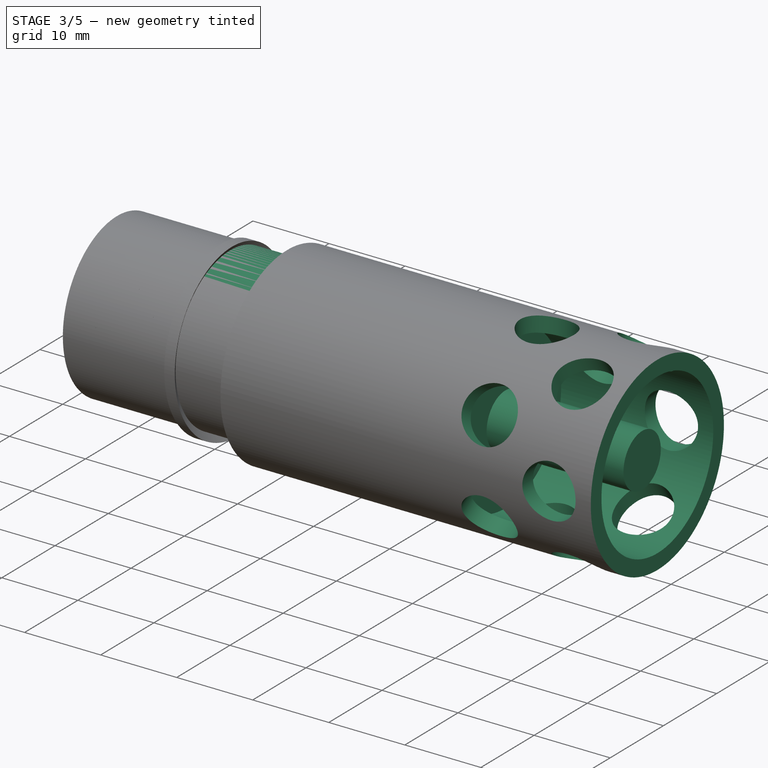
[diagram: stage 3 of 5 — iso view after this stage's code; geometry added in this stage tinted green]
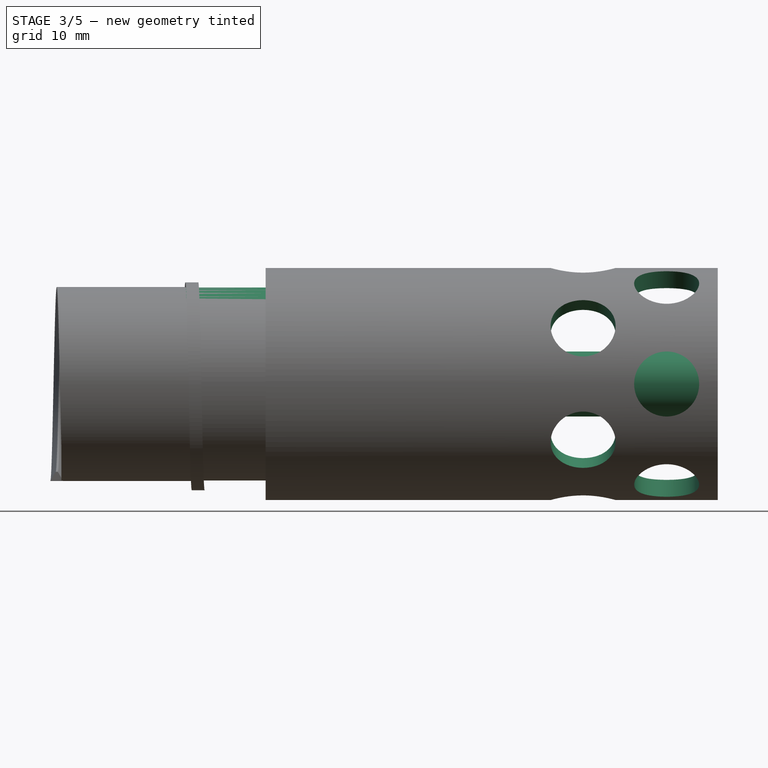
[diagram: stage 3 of 5 — front view after this stage's code; geometry added in this stage tinted green]
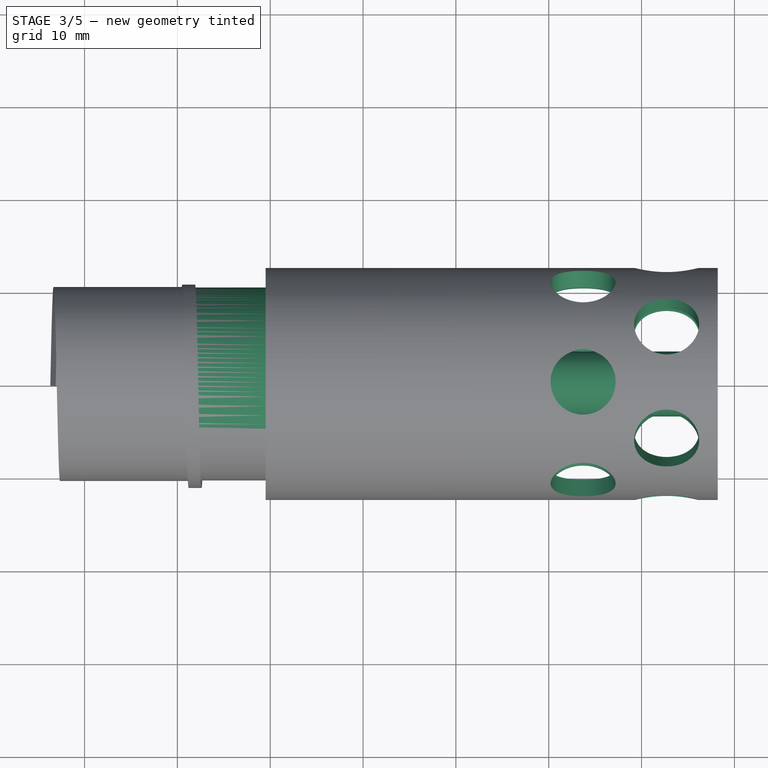
[diagram: stage 3 of 5 — top view after this stage's code; geometry added in this stage tinted green]
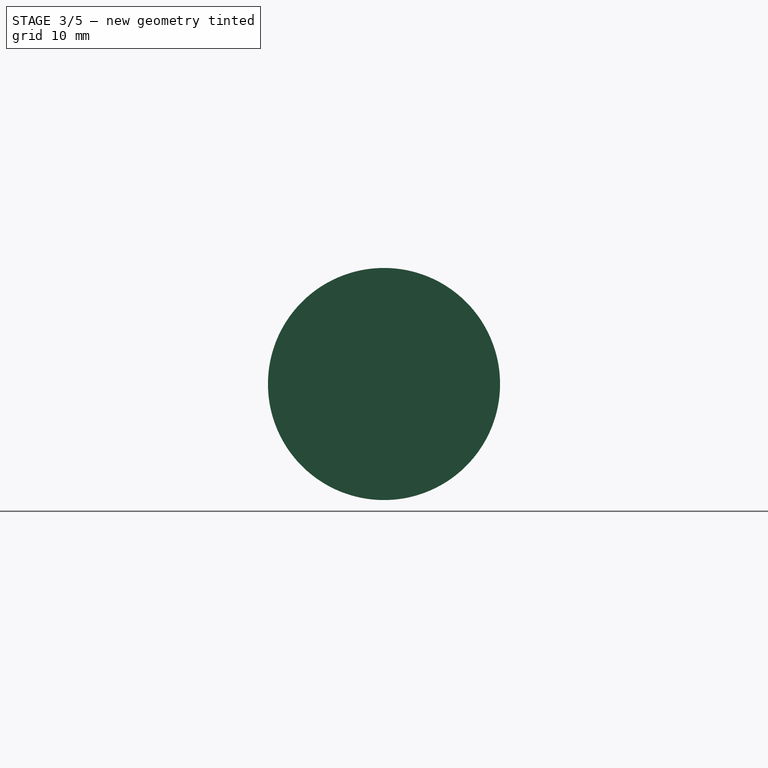
[diagram: stage 3 of 5 — right view after this stage's code; geometry added in this stage tinted green]
FEATURE [Drawing::FeatureViewPython] dim082  # drawing view (typed FeaturePython)
  Rotation = 0
  ViewResult = <g> \n  <line x1="168.525000" y1="100.250000" x2="168.525000" y2="140.807895" style="stroke:rgb(255,0,0);stroke-width:0.10" />\n<line x1="201.525000" y1="95.375000" x2="201.525000" y2="140.807895" style="stroke:rgb(255,0,0);stroke-width:0.10" />\n<line x1="168.525000" y1="139.807895" x2="201.525000" y2="139.807895" style="stroke:rgb(255,0,0);stroke-width:0.10" /> \n  <polygon points="201.525000,139.807895 199.525000,139.307895 199.025000,139.807895 199.525000,140.307895" style="fill:rgb(255,0,0);stroke:rgb(255,0,0);stroke-width:0" /><polygon points="168.525000,139.807895 170.525000,140.307895 171.025000,139.807895 170.525000,139.307895" style="fill:rgb(255,0,0);stroke:rgb(255,0,0);stroke-width:0" /> \n  <text x="185.025000" y="137.807895" font-family="inherit" font-size="3.6" fill="rgb(0,0,0)" text-anchor="middle" transform="rotate(0.000000 185.025000,137.807895)" >22</text> </g>
  Visible = false
  X = 0
  Y = 0
  arrowL1 = 2
  arrowL2 = 0.5
  arrowW = 1
  arrow_scheme = 0
  autoPlaceOffset = 2
  autoPlaceText = true
  click1_x = 186.603
  click1_y = 139.808
  click2_x = 186.603
  click2_y = 139.808
  comma_decimal_place = false
  dimension_line_overshoot = 1
  gap_datum_points = 0
  halfDimension_linear = false
  lineColor = rgb(255,0,0)
  strokeWidth = 0.1
  textFormat_linear = %(value)3.2f
  textRenderer_color = rgb(0,0,0)
  textRenderer_family = inherit
  textRenderer_size = 3.6
  unit_custom_scale = 1
  unit_scheme = 0
FEATURE [Drawing::FeatureViewPython] dim083  # drawing view (typed FeaturePython)
  Rotation = 0
  ViewResult = <g> \n  <line x1="168.525000" y1="96.159335" x2="168.525000" y2="129.776685" style="stroke:rgb(255,0,0);stroke-width:0.10" />\n<line x1="180.114000" y1="95.874245" x2="180.114000" y2="129.776685" style="stroke:rgb(255,0,0);stroke-width:0.10" />\n<line x1="168.525000" y1="128.776685" x2="180.114000" y2="128.776685" style="stroke:rgb(255,0,0);stroke-width:0.10" /> \n  <polygon points="180.114000,128.776685 178.114000,128.276685 177.614000,128.776685 178.114000,129.276685" style="fill:rgb(255,0,0);stroke:rgb(255,0,0);stroke-width:0" /><polygon points="168.525000,128.776685 170.525000,129.276685 171.025000,128.776685 170.525000,128.276685" style="fill:rgb(255,0,0);stroke:rgb(255,0,0);stroke-width:0" /> \n  <text x="174.319500" y="126.776685" font-family="inherit" font-size="3.6" fill="rgb(0,0,0)" text-anchor="middle" transform="rotate(0.000000 174.319500,126.776685)" >7.8</text> </g>
  Visible = false
  X = 0
  Y = 0
  arrowL1 = 2
  arrowL2 = 0.5
  arrowW = 1
  arrow_scheme = 0
  autoPlaceOffset = 2
  autoPlaceText = true
  click1_x = 178.287
  click1_y = 128.777
  click2_x = 178.287
  click2_y = 128.777
  comma_decimal_place = false
  dimension_line_overshoot = 1
  gap_datum_points = 0
  halfDimension_linear = false
  lineColor = rgb(255,0,0)
  strokeWidth = 0.1
  textFormat_linear = 7.8
  textRenderer_color = rgb(0,0,0)
  textRenderer_family = inherit
  textRenderer_size = 3.6
  unit_custom_scale = 1
  unit_scheme = 0
FEATURE [Drawing::FeatureViewPython] dim084  # drawing view (typed FeaturePython)
  Rotation = 0
  ViewResult = <g> \n  <line x1="180.189000" y1="97.099700" x2="180.189000" y2="129.776685" style="stroke:rgb(255,0,0);stroke-width:0.10" />\n<line x1="201.525000" y1="95.027120" x2="201.525000" y2="129.776685" style="stroke:rgb(255,0,0);stroke-width:0.10" />\n<line x1="180.189000" y1="128.776685" x2="201.525000" y2="128.776685" style="stroke:rgb(255,0,0);stroke-width:0.10" /> \n  <polygon points="201.525000,128.776685 199.525000,128.276685 199.025000,128.776685 199.525000,129.276685" style="fill:rgb(255,0,0);stroke:rgb(255,0,0);stroke-width:0" /><polygon points="180.189000,128.776685 182.189000,129.276685 182.689000,128.776685 182.189000,128.276685" style="fill:rgb(255,0,0);stroke:rgb(255,0,0);stroke-width:0" /> \n  <text x="190.857000" y="126.776685" font-family="inherit" font-size="3.6" fill="rgb(0,0,0)" text-anchor="middle" transform="rotate(0.000000 190.857000,126.776685)" >14.2</text> </g>
  Visible = false
  X = 0
  Y = 0
  arrowL1 = 2
  arrowL2 = 0.5
  arrowW = 1
  arrow_scheme = 0
  autoPlaceOffset = 2
  autoPlaceText = true
  click1_x = 199.396
  click1_y = 128.777
  click2_x = 199.396
  click2_y = 128.777
  comma_decimal_place = false
  dimension_line_overshoot = 1
  gap_datum_points = 0
  halfDimension_linear = false
  lineColor = rgb(255,0,0)
  strokeWidth = 0.1
  textFormat_linear = %(value)3.1f
  textRenderer_color = rgb(0,0,0)
  textRenderer_family = inherit
  textRenderer_size = 3.6
  unit_custom_scale = 1
  unit_scheme = 0
FEATURE [Drawing::FeatureViewPython] dim085  # drawing view (typed FeaturePython)
  Rotation = 0
  ViewResult = <g> \n  <line x1="244.262000" y1="79.175000" x2="271.156926" y2="79.175000" style="stroke:rgb(255,0,0);stroke-width:0.10" />\n<line x1="244.262000" y1="83.825000" x2="271.156926" y2="83.825000" style="stroke:rgb(255,0,0);stroke-width:0.10" />\n<line x1="270.156926" y1="79.175000" x2="270.156926" y2="83.825000" style="stroke:rgb(255,0,0);stroke-width:0.10" /> \n  <polygon points="270.156926,83.825000 269.656926,85.825000 270.156926,86.325000 270.656926,85.825000" style="fill:rgb(255,0,0);stroke:rgb(255,0,0);stroke-width:0" /><polygon points="270.156926,79.175000 270.656926,77.175000 270.156926,76.675000 269.656926,77.175000" style="fill:rgb(255,0,0);stroke:rgb(255,0,0);stroke-width:0" /> \n  <text x="268.156926" y="81.500000" font-family="inherit" font-size="3.6" fill="rgb(0,0,0)" text-anchor="middle" transform="rotate(-90.000000 268.156926,81.500000)" >3.1</text> </g>
  Visible = false
  X = 0
  Y = 0
  arrowL1 = 2
  arrowL2 = 0.5
  arrowW = 1
  arrow_scheme = 0
  autoPlaceOffset = 2
  autoPlaceText = true
  click1_x = 270.157
  click1_y = 83.9295
  click2_x = 270.157
  click2_y = 83.9295
  comma_decimal_place = false
  dimension_line_overshoot = 1
  gap_datum_points = 0
  halfDimension_linear = false
  lineColor = rgb(255,0,0)
  strokeWidth = 0.1
  textFormat_linear = %(value)3.3f
  textRenderer_color = rgb(0,0,0)
  textRenderer_family = inherit
  textRenderer_size = 3.6
  unit_custom_scale = 1
  unit_scheme = 0
FEATURE [Drawing::FeatureViewPython] dim086  # drawing view (typed FeaturePython)
  Rotation = 0
  ViewResult = <g> \n  <line x1="244.262000" y1="71.675000" x2="279.210767" y2="71.675000" style="stroke:rgb(255,0,0);stroke-width:0.10" />\n<line x1="244.262000" y1="91.325000" x2="279.210767" y2="91.325000" style="stroke:rgb(255,0,0);stroke-width:0.10" />\n<line x1="278.210767" y1="71.675000" x2="278.210767" y2="91.325000" style="stroke:rgb(255,0,0);stroke-width:0.10" /> \n  <polygon points="278.210767,91.325000 278.710767,89.325000 278.210767,88.825000 277.710767,89.325000" style="fill:rgb(255,0,0);stroke:rgb(255,0,0);stroke-width:0" /><polygon points="278.210767,71.675000 277.710767,73.675000 278.210767,74.175000 278.710767,73.675000" style="fill:rgb(255,0,0);stroke:rgb(255,0,0);stroke-width:0" /> \n  <text x="276.210767" y="81.500000" font-family="inherit" font-size="3.6" fill="rgb(0,0,0)" text-anchor="middle" transform="rotate(-90.000000 276.210767,81.500000)" >13.1</text> </g>
  Visible = false
  X = 0
  Y = 0
  arrowL1 = 2
  arrowL2 = 0.5
  arrowW = 1
  arrow_scheme = 0
  autoPlaceOffset = 2
  autoPlaceText = true
  click1_x = 278.211
  click1_y = 90.0052
  click2_x = 278.211
  click2_y = 90.0052
  comma_decimal_place = false
  dimension_line_overshoot = 1
  gap_datum_points = 0
  halfDimension_linear = false
  lineColor = rgb(255,0,0)
  strokeWidth = 0.1
  textFormat_linear = %(value)3.3f
  textRenderer_color = rgb(0,0,0)
  textRenderer_family = inherit
  textRenderer_size = 3.6
  unit_custom_scale = 1
  unit_scheme = 0
FEATURE [Drawing::FeatureViewPython] dim087  # drawing view (typed FeaturePython)
  Rotation = 0
  ViewResult = <g> \n  <line x1="244.262000" y1="94.250000" x2="286.156852" y2="94.250000" style="stroke:rgb(255,0,0);stroke-width:0.10" />\n<line x1="244.262000" y1="68.750000" x2="286.156852" y2="68.750000" style="stroke:rgb(255,0,0);stroke-width:0.10" />\n<line x1="285.156852" y1="94.250000" x2="285.156852" y2="68.750000" style="stroke:rgb(255,0,0);stroke-width:0.10" /> \n  <polygon points="285.156852,68.750000 284.656852,70.750000 285.156852,71.250000 285.656852,70.750000" style="fill:rgb(255,0,0);stroke:rgb(255,0,0);stroke-width:0" /><polygon points="285.156852,94.250000 285.656852,92.250000 285.156852,91.750000 284.656852,92.250000" style="fill:rgb(255,0,0);stroke:rgb(255,0,0);stroke-width:0" /> \n  <text x="283.156852" y="81.500000" font-family="inherit" font-size="3.6" fill="rgb(0,0,0)" text-anchor="middle" transform="rotate(-90.000000 283.156852,81.500000)" >17</text> </g>
  Visible = false
  X = 0
  Y = 0
  arrowL1 = 2
  arrowL2 = 0.5
  arrowW = 1
  arrow_scheme = 0
  autoPlaceOffset = 2
  autoPlaceText = true
  click1_x = 285.157
  click1_y = 98.3756
  click2_x = 285.157
  click2_y = 98.3756
  comma_decimal_place = false
  dimension_line_overshoot = 1
  gap_datum_points = 0
  halfDimension_linear = false
  lineColor = rgb(255,0,0)
  strokeWidth = 0.1
  textFormat_linear = %(value)3.3f
  textRenderer_color = rgb(0,0,0)
  textRenderer_family = inherit
  textRenderer_size = 3.6
  unit_custom_scale = 1
  unit_scheme = 0
FEATURE [Part::Cylinder] Cylinder051  label="Cylinder053"
  Angle = 360
  AttacherType = Attacher::AttachEngine3D
  Height = 25
  Placement = pos=(150,0,0) rot=(0,1,0;1.5708rad)
  Radius = 9.45
FEATURE [Drawing::FeatureViewPython] dim181  # drawing view (typed FeaturePython)
  Rotation = 0
  ViewResult = <g> \n  <line x1="117.225000" y1="99.713450" x2="117.225000" y2="109.618263" style="stroke:rgb(255,0,0);stroke-width:0.10" />\n<line x1="168.525000" y1="99.779900" x2="168.525000" y2="109.618263" style="stroke:rgb(255,0,0);stroke-width:0.10" />\n<line x1="117.225000" y1="108.618263" x2="168.525000" y2="108.618263" style="stroke:rgb(255,0,0);stroke-width:0.10" /> \n  <polygon points="168.525000,108.618263 166.525000,108.118263 166.025000,108.618263 166.525000,109.118263" style="fill:rgb(255,0,0);stroke:rgb(255,0,0);stroke-width:0" /><polygon points="117.225000,108.618263 119.225000,109.118263 119.725000,108.618263 119.225000,108.118263" style="fill:rgb(255,0,0);stroke:rgb(255,0,0);stroke-width:0" /> \n  <text x="142.875000" y="106.618263" font-family="inherit" font-size="3.6" fill="rgb(0,0,0)" text-anchor="middle" transform="rotate(0.000000 142.875000,106.618263)" >34.2</text> </g>
  Visible = false
  X = 0
  Y = 0
  arrowL1 = 2
  arrowL2 = 0.5
  arrowW = 1
  arrow_scheme = 0
  autoPlaceOffset = 2
  autoPlaceText = true
  click1_x = 166.803
  click1_y = 108.618
  click2_x = 166.803
  click2_y = 108.618
  comma_decimal_place = false
  dimension_line_overshoot = 1
  gap_datum_points = 0
  halfDimension_linear = false
  lineColor = rgb(255,0,0)
  strokeWidth = 0.1
  textFormat_linear = %(value)3.3f
  textRenderer_color = rgb(0,0,0)
  textRenderer_family = inherit
  textRenderer_size = 3.6
  unit_custom_scale = 1
  unit_scheme = 0
FEATURE [Drawing::FeatureViewPython] dim180  # drawing view (typed FeaturePython)
  Rotation = 0
  ViewResult = <g> \n  <line x1="103.725000" y1="95.046635" x2="103.725000" y2="116.364920" style="stroke:rgb(255,0,0);stroke-width:0.10" />\n<line x1="168.525000" y1="100.250000" x2="168.525000" y2="116.364920" style="stroke:rgb(255,0,0);stroke-width:0.10" />\n<line x1="103.725000" y1="115.364920" x2="168.525000" y2="115.364920" style="stroke:rgb(255,0,0);stroke-width:0.10" /> \n  <polygon points="168.525000,115.364920 166.525000,114.864920 166.025000,115.364920 166.525000,115.864920" style="fill:rgb(255,0,0);stroke:rgb(255,0,0);stroke-width:0" /><polygon points="103.725000,115.364920 105.725000,115.864920 106.225000,115.364920 105.725000,114.864920" style="fill:rgb(255,0,0);stroke:rgb(255,0,0);stroke-width:0" /> \n  <text x="136.125000" y="113.364920" font-family="inherit" font-size="3.6" fill="rgb(0,0,0)" text-anchor="middle" transform="rotate(0.000000 136.125000,113.364920)" >43.2</text> </g>
  Visible = false
  X = 0
  Y = 0
  arrowL1 = 2
  arrowL2 = 0.5
  arrowW = 1
  arrow_scheme = 0
  autoPlaceOffset = 2
  autoPlaceText = true
  click1_x = 168.347
  click1_y = 115.365
  click2_x = 168.347
  click2_y = 115.365
  comma_decimal_place = false
  dimension_line_overshoot = 1
  gap_datum_points = 0
  halfDimension_linear = false
  lineColor = rgb(255,0,0)
  strokeWidth = 0.1
  textFormat_linear = %(value)3.3f
  textRenderer_color = rgb(0,0,0)
  textRenderer_family = inherit
  textRenderer_size = 3.6
  unit_custom_scale = 1
  unit_scheme = 0
FEATURE [Drawing::FeatureViewPython] dim182  # drawing view (typed FeaturePython)
  Rotation = 0
  ViewResult = <g> \n  <line x1="95.475000" y1="100.250000" x2="95.475000" y2="110.138877" style="stroke:rgb(255,0,0);stroke-width:0.10" />\n<line x1="103.725000" y1="95.046635" x2="103.725000" y2="110.138877" style="stroke:rgb(255,0,0);stroke-width:0.10" />\n<line x1="95.475000" y1="109.138877" x2="103.725000" y2="109.138877" style="stroke:rgb(255,0,0);stroke-width:0.10" /> \n  <polygon points="103.725000,109.138877 101.725000,108.638877 101.225000,109.138877 101.725000,109.638877" style="fill:rgb(255,0,0);stroke:rgb(255,0,0);stroke-width:0" /><polygon points="95.475000,109.138877 97.475000,109.638877 97.975000,109.138877 97.475000,108.638877" style="fill:rgb(255,0,0);stroke:rgb(255,0,0);stroke-width:0" /> \n  <text x="99.600000" y="107.138877" font-family="inherit" font-size="3.6" fill="rgb(0,0,0)" text-anchor="middle" transform="rotate(0.000000 99.600000,107.138877)" >5.5</text> </g>
  Visible = false
  X = 0
  Y = 0
  arrowL1 = 2
  arrowL2 = 0.5
  arrowW = 1
  arrow_scheme = 0
  autoPlaceOffset = 2
  autoPlaceText = true
  click1_x = 101.57
  click1_y = 109.139
  click2_x = 101.57
  click2_y = 109.139
  comma_decimal_place = false
  dimension_line_overshoot = 1
  gap_datum_points = 0
  halfDimension_linear = false
  lineColor = rgb(255,0,0)
  strokeWidth = 0.1
  textFormat_linear = %(value)3.3f
  textRenderer_color = rgb(0,0,0)
  textRenderer_family = inherit
  textRenderer_size = 3.6
  unit_custom_scale = 1
  unit_scheme = 0
FEATURE [Drawing::FeatureViewPython] dim183  # drawing view (typed FeaturePython)
  Rotation = 0
  ViewResult = <g> \n  <line x1="117.225000" y1="99.713450" x2="117.225000" y2="124.544232" style="stroke:rgb(255,0,0);stroke-width:0.10" />\n<line x1="95.475000" y1="100.250000" x2="95.475000" y2="124.544232" style="stroke:rgb(255,0,0);stroke-width:0.10" />\n<line x1="117.225000" y1="123.544232" x2="95.475000" y2="123.544232" style="stroke:rgb(255,0,0);stroke-width:0.10" /> \n  <polygon points="95.475000,123.544232 97.475000,124.044232 97.975000,123.544232 97.475000,123.044232" style="fill:rgb(255,0,0);stroke:rgb(255,0,0);stroke-width:0" /><polygon points="117.225000,123.544232 115.225000,123.044232 114.725000,123.544232 115.225000,124.044232" style="fill:rgb(255,0,0);stroke:rgb(255,0,0);stroke-width:0" /> \n  <text x="106.350000" y="121.544232" font-family="inherit" font-size="3.6" fill="rgb(0,0,0)" text-anchor="middle" transform="rotate(0.000000 106.350000,121.544232)" >14.5</text> </g>
  Visible = false
  X = 0
  Y = 0
  arrowL1 = 2
  arrowL2 = 0.5
  arrowW = 1
  arrow_scheme = 0
  autoPlaceOffset = 2
  autoPlaceText = true
  click1_x = 96.0764
  click1_y = 123.544
  click2_x = 96.0764
  click2_y = 123.544
  comma_decimal_place = false
  dimension_line_overshoot = 1
  gap_datum_points = 0
  halfDimension_linear = false
  lineColor = rgb(255,0,0)
  strokeWidth = 0.1
  textFormat_linear = %(value)3.3f
  textRenderer_color = rgb(0,0,0)
  textRenderer_family = inherit
  textRenderer_size = 3.6
  unit_custom_scale = 1
  unit_scheme = 0
FEATURE [Part::Cylinder] Cylinder050  label="Cylinder052"
  Angle = 360
  AttacherType = Attacher::AttachEngine3D
  Height = 20.5
  Placement = pos=(226.5,0,0) rot=(0,1,0;1.5708rad)
  Radius = 1.55
FEATURE [Part::Cylinder] Cylinder052  label="Cylinder054"
  Angle = 360
  AttacherType = Attacher::AttachEngine3D
  Height = 46
  Placement = pos=(180.5,0,0) rot=(0,1,0;1.5708rad)
  Radius = 6.55
FEATURE [Part::Cylinder] Cylinder058  label="Cylinder064"
  Angle = 360
  AttacherType = Attacher::AttachEngine3D
  Height = 22
  Placement = pos=(180.5,0,0) rot=(0,1,0;1.5708rad)
  Radius = 12.5
FEATURE [Part::MultiFuse] Fusion011
  Shapes = -> [Cylinder050,Cylinder052]
FEATURE [Part::Cut] Cut037
  Base = -> Sweep014
  Tool = -> Cylinder051
FEATURE [Part::Cut] Cut039
  Base = -> Sweep015
  Tool = -> Cylinder051
FEATURE [Part::Cut] Cut045
  Base = -> Cylinder058
  Tool = -> Cylinder055
FEATURE [Part::Cut] Cut055
  Base = -> Fusion014
  Tool = -> Fusion011
FEATURE [Part::Cut] Cut056
  Base = -> Cut055
  Placement = pos=(-23,0,0) rot=(0,0,1;0rad)
  Tool = -> Cut045
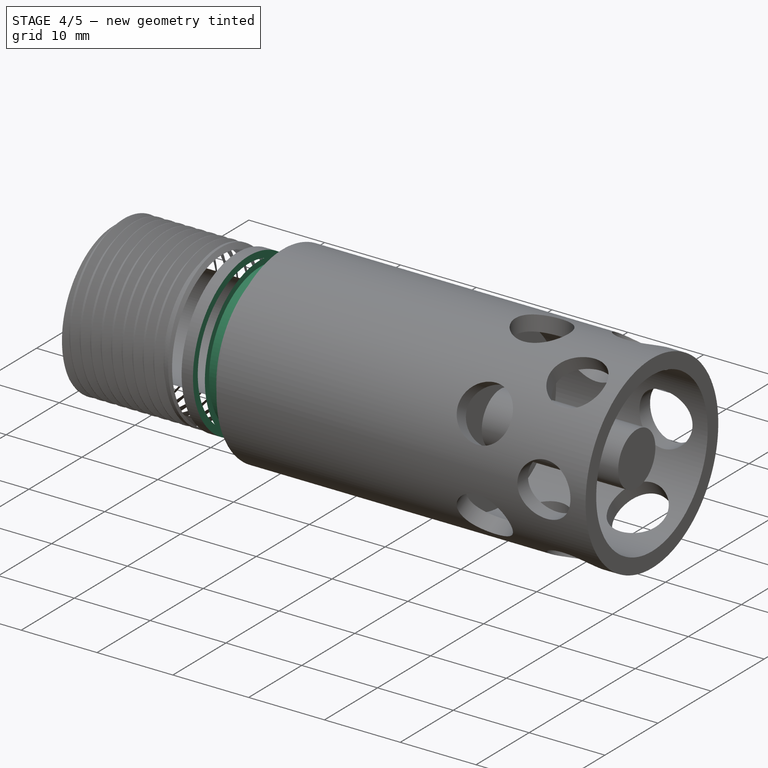
[diagram: stage 4 of 5 — iso view after this stage's code; geometry added in this stage tinted green]
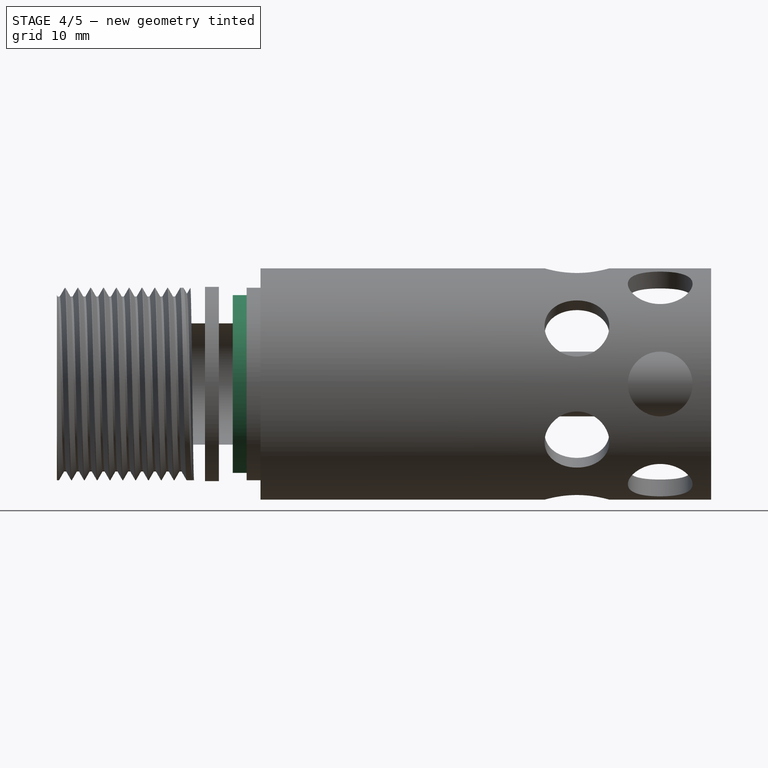
[diagram: stage 4 of 5 — front view after this stage's code; geometry added in this stage tinted green]
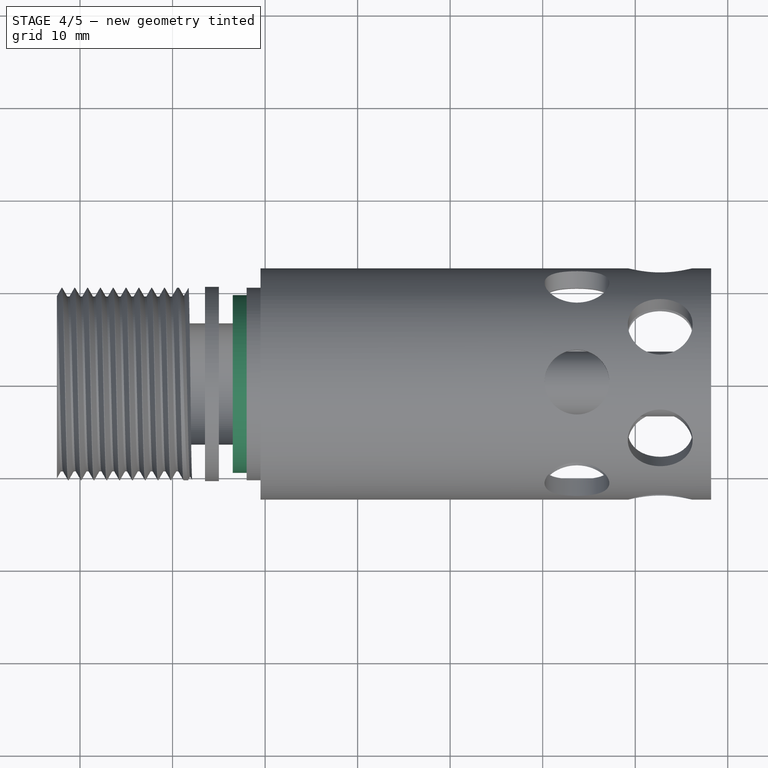
[diagram: stage 4 of 5 — top view after this stage's code; geometry added in this stage tinted green]
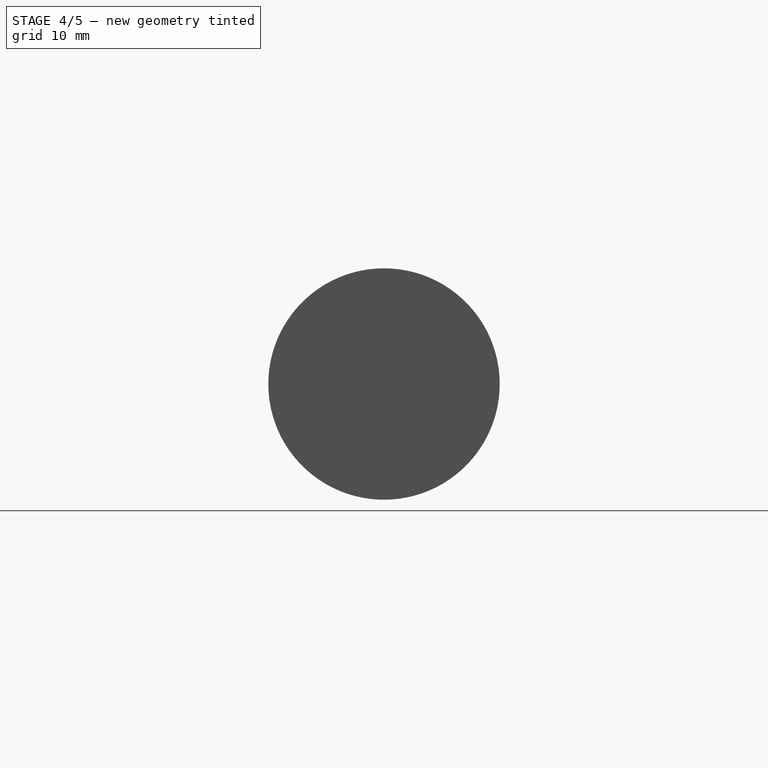
[diagram: stage 4 of 5 — right view after this stage's code; geometry added in this stage tinted green]
FEATURE [Part::Helix] Helix017
  Angle = 0
  AttacherType = Attacher::AttachEngine3D
  Height = 13.86
  LocalCoord = 0
  Pitch = 1.3856
  Placement = pos=(157,0,0) rot=(0,1,0;1.5708rad)
  Radius = 10.5
  Style = 1
FEATURE [Sketcher::SketchObject] Sketch021  label="T020"
  Placement = pos=(157,0,-10.45) rot=(1,0,0;1.5708rad)
  sketch-geometry (3):
    g0: LineSegment StartX=0.00120621 StartY=1.19996 StartZ=0 EndX=-0.691594 EndY=0 EndZ=0
    g1: LineSegment StartX=0.694006 StartY=0 StartZ=0 EndX=0.00120621 EndY=1.19996 EndZ=0
    g2: LineSegment StartX=-0.691594 StartY=0 StartZ=0 EndX=0.694006 EndY=0 EndZ=0
  constraints (8):
    c: PointOnObject(g1,g-1)
    c: Coincident(g1,g0)
    c: Coincident(g2,g0)
    c: Coincident(g2,g1)
    c: Horizontal(g2)
    c: Angle(g2,g0) = 1.0472
    c: Angle(g1,g2) = 1.0472
    c: Distance(g0,g0) = 1.3856
FEATURE [Part::Cylinder] Cylinder061  label="Cylinder066"
  Angle = 360
  AttacherType = Attacher::AttachEngine3D
  Height = 1.5
  Placement = pos=(178,0,0) rot=(0,1,0;1.5708rad)
  Radius = 10.5
FEATURE [Part::Cylinder] Cylinder060  label="Cylinder065"
  Angle = 360
  AttacherType = Attacher::AttachEngine3D
  Height = 1.5
  Placement = pos=(178,0,0) rot=(0,1,0;1.5708rad)
  Radius = 10.5
FEATURE [Sketcher::SketchObject] Sketch022  label="T021"
  Placement = pos=(170.856,0,-10.45) rot=(1,0,0;1.5708rad)
  sketch-geometry (3):
    g0: LineSegment StartX=0.00120621 StartY=1.19996 StartZ=0 EndX=-0.691594 EndY=0 EndZ=0
    g1: LineSegment StartX=0.694006 StartY=0 StartZ=0 EndX=0.00120621 EndY=1.19996 EndZ=0
    g2: LineSegment StartX=-0.691594 StartY=0 StartZ=0 EndX=0.694006 EndY=0 EndZ=0
  constraints (8):
    c: PointOnObject(g1,g-1)
    c: Coincident(g1,g0)
    c: Coincident(g2,g0)
    c: Coincident(g2,g1)
    c: Horizontal(g2)
    c: Angle(g2,g0) = 1.0472
    c: Angle(g1,g2) = 1.0472
    c: Distance(g0,g0) = 1.3856
FEATURE [Part::Cylinder] Cylinder054  label="Cylinder060"
  Angle = 360
  AttacherType = Attacher::AttachEngine3D
  Height = 1.5
  Placement = pos=(178,0,0) rot=(0,1,0;1.5708rad)
  Radius = 9.6
FEATURE [Part::Cut] Cut051
  Base = -> Cylinder060
  Placement = pos=(-4.5,0,0) rot=(0,0,1;0rad)
  Tool = -> Cylinder054
FEATURE [Drawing::FeatureViewPython] dia017  # drawing view (typed FeaturePython)
  Rotation = 0
  ViewResult = <g>  <circle cx ="52.744436" cy ="81.513511" r="0.250000" stroke="none" fill="rgb(255,0,0)" /> \n<line x1="69.867632" y1="118.977490" x2="46.190918" y2="67.175015" style="stroke:rgb(255,0,0);stroke-width:0.10" />\n<polygon points="59.297955,95.852007 58.921316,93.825152 58.258716,93.578248 58.011812,94.240848" style="fill:rgb(255,0,0);stroke:rgb(255,0,0);stroke-width:0" />\n<polygon points="46.190918,67.175015 46.567557,69.201871 47.230157,69.448775 47.477061,68.786175" style="fill:rgb(255,0,0);stroke:rgb(255,0,0);stroke-width:0" />\n<line x1="69.867632" y1="118.977490" x2="93.663130" y2="118.977490" style="stroke:rgb(255,0,0);stroke-width:0.10" />\n<text x="81.765381" y="116.977490" font-family="inherit" font-size="3.6" fill="rgb(0,0,0)" text-anchor="middle" transform="rotate(0.000000 81.765381,116.977490)" >Ø 21</text> </g>
  Visible = false
  X = 0
  Y = 0
  arrowL1 = 2
  arrowL2 = 0.5
  arrowW = 1
  arrow_scheme = 0
  autoPlaceOffset = 2
  autoPlaceText = true
  centerPointDia = 0.5
  click1_x = 69.8676
  click1_y = 118.977
  click2_x = 93.6631
  click2_y = 121.256
  click3_x = 93.6631
  click3_y = 121.256
  comma_decimal_place = false
  lineColor = rgb(255,0,0)
  strokeWidth = 0.1
  textFormat_circular = Ø%(value)3.0f
  textRenderer_color = rgb(0,0,0)
  textRenderer_family = inherit
  textRenderer_size = 3.6
  unit_custom_scale = 1.7
  unit_scheme = 0
FEATURE [Part::Cylinder] Cylinder056  label="Cylinder061"
  Angle = 360
  AttacherType = Attacher::AttachEngine3D
  Height = 1.5
  Placement = pos=(178,0,0) rot=(0,1,0;1.5708rad)
  Radius = 9.6
FEATURE [Part::Cut] Cut044
  Base = -> Cylinder061
  Placement = pos=(-1.5,0,0) rot=(0,0,1;0rad)
  Tool = -> Cylinder056
FEATURE [Part::Cut] Cut057
  Base = -> Cut056
  Tool = -> Cut037
FEATURE [Part::Cut] Cut058
  Base = -> Cut057
  Tool = -> Cut039
FEATURE [Part::Cut] Cut059
  Base = -> Cut058
  Tool = -> Cut044
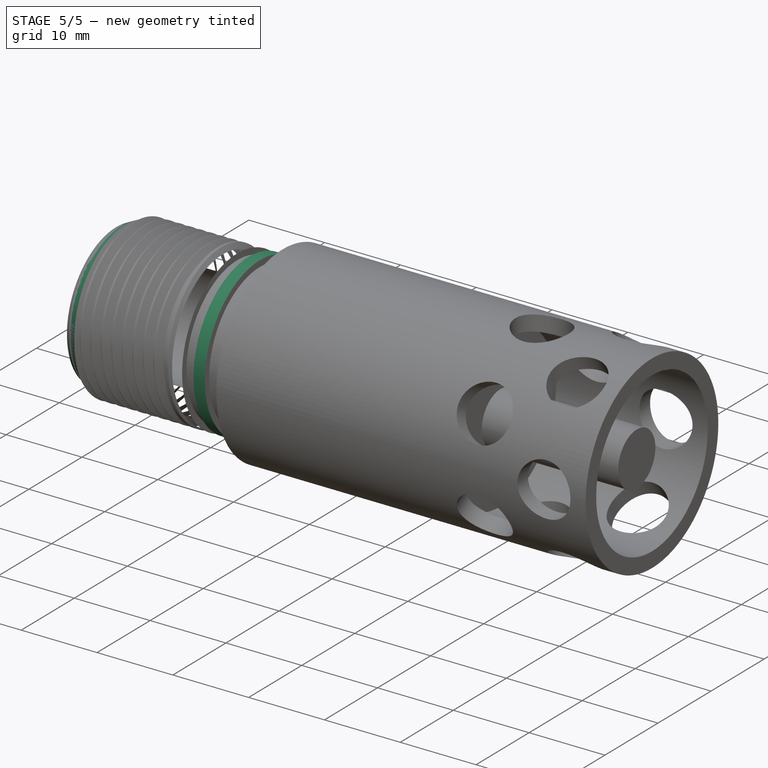
[diagram: stage 5 of 5 — iso view after this stage's code; geometry added in this stage tinted green]
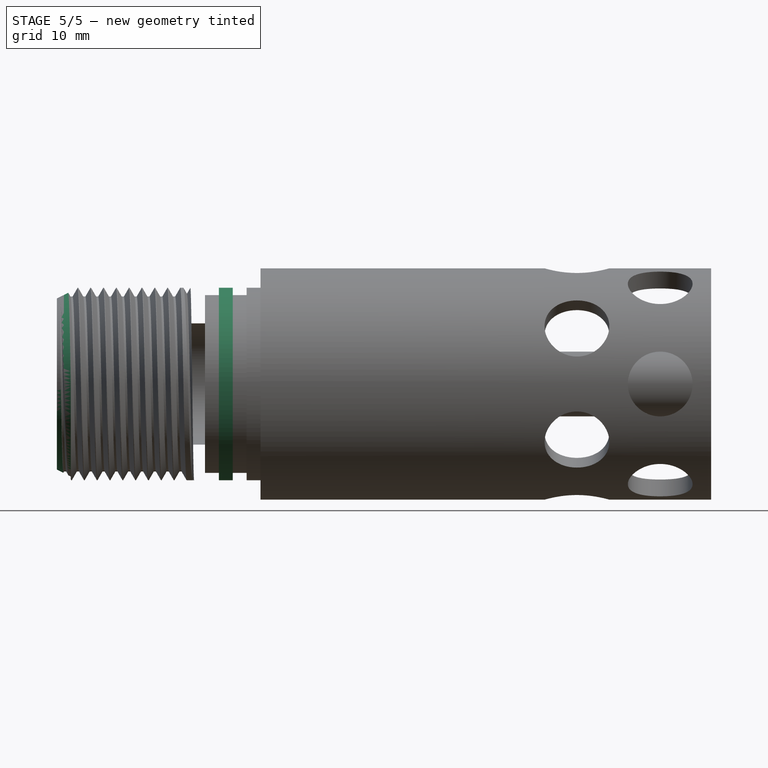
[diagram: stage 5 of 5 — front view after this stage's code; geometry added in this stage tinted green]
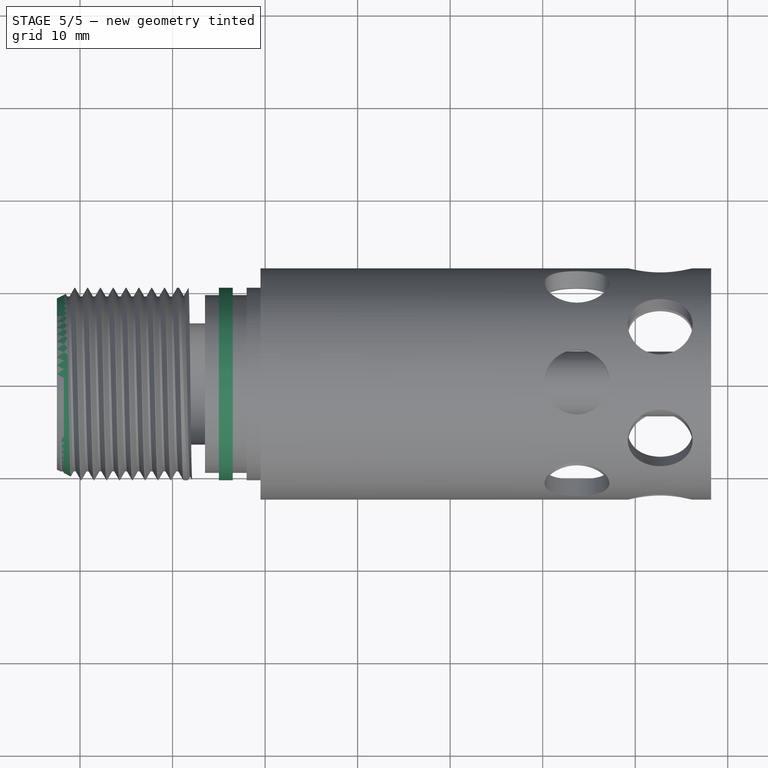
[diagram: stage 5 of 5 — top view after this stage's code; geometry added in this stage tinted green]
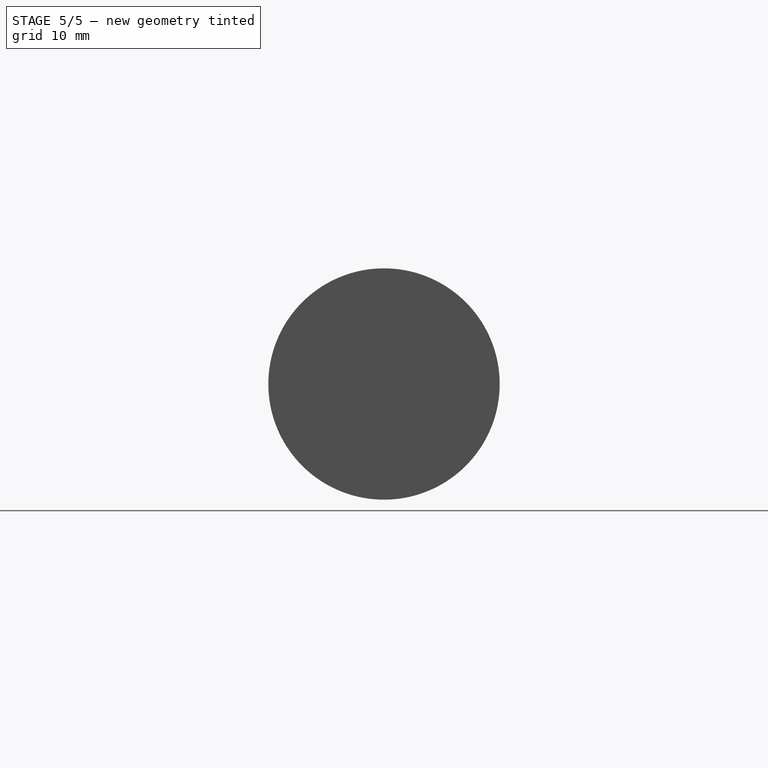
[diagram: stage 5 of 5 — right view after this stage's code; geometry added in this stage tinted green]
FEATURE [Part::Cylinder] Cylinder062  label="Cylinder067"
  Angle = 360
  AttacherType = Attacher::AttachEngine3D
  Height = 3
  Placement = pos=(157.5,-8.5,0) rot=(0,1,0;1.5708rad)
  Radius = 0.55
FEATURE [Part::Helix] Helix018
  Angle = 35.82
  AttacherType = Attacher::AttachEngine3D
  Height = 1.3856
  LocalCoord = 0
  Pitch = 1.3856
  Placement = pos=(170.856,0,0) rot=(0,1,0;1.5708rad)
  Radius = 9.25
  Style = 1
FEATURE [Part::Cone] Cone003
  Angle = 360
  AttacherType = Attacher::AttachEngine3D
  Height = 2
  Placement = pos=(158,0,0) rot=(0,1,0;1.5708rad)
  Radius1 = 20
  Radius2 = 21
FEATURE [Part::Cone] Cone002
  Angle = 360
  AttacherType = Attacher::AttachEngine3D
  Height = 2
  Placement = pos=(158,0,0) rot=(0,1,0;1.5708rad)
  Radius1 = 9
  Radius2 = 10
FEATURE [Part::Cut] Cut047
  Base = -> Cone003
  Placement = pos=(-1,0,0) rot=(0,0,1;0rad)
  Tool = -> Cone002
FEATURE [Part::Cylinder] Cylinder053  label="Cylinder062"
  Angle = 360
  AttacherType = Attacher::AttachEngine3D
  Height = 3
  Placement = pos=(157.5,8.5,0) rot=(0,1,0;1.5708rad)
  Radius = 0.55
FEATURE [Part::Cut] Cut060
  Base = -> Cut059
  Tool = -> Cut051
FEATURE [Part::Cut] Cut061
  Base = -> Cut060
  Tool = -> Cut047
FEATURE [Part::Cut] Cut062
  Base = -> Cut061
  Tool = -> Cylinder053
FEATURE [Part::Cut] Cut063  label="SensorHolder2"
  Base = -> Cut062
  Tool = -> Cylinder062
FEATURE [Drawing::FeatureViewPart] Ortho014  label="Ortho_0_006"
  Direction = (1,0,0)
  HiddenWidth = 0.15
  LineWidth = 0.35
  Rotation = 0
  Scale = 1.5
  ShowHiddenLines = false
  ShowSmoothLines = false
  Source = -> Cut063
  Tolerance = 0.05
  ViewResult = <blob: 13311 chars omitted>
  Visible = false
  X = 52.7375
  Y = 81.5
FEATURE [Drawing::FeatureViewPart] Ortho015  label="Ortho_1_004"
  Direction = (0,0,1)
  HiddenWidth = 0.15
  LineWidth = 0.35
  Rotation = 180
  Scale = 1.5
  ShowHiddenLines = false
  ShowSmoothLines = false
  Source = -> Cut063
  Tolerance = 0.05
  ViewResult = <blob: 45359 chars omitted>
  Visible = false
  X = 437.775
  Y = 81.5
FEATURE [Drawing::FeatureViewPart] Ortho016  label="Ortho_2_0"
  Direction = (-1,0,0)
  HiddenWidth = 0.15
  LineWidth = 0.35
  Rotation = 0
  Scale = 1.5
  ShowHiddenLines = false
  ShowSmoothLines = false
  Source = -> Cut063
  Tolerance = 0.05
  ViewResult = <blob: 22962 chars omitted>
  Visible = false
  X = 244.262
  Y = 81.5
FEATURE [Drawing::FeaturePage] Page006  label="SensorHolder2-SV"
  EditableTexts = Dr. Zoidberg | 05.02.2019 | x1.5 | unknowm | ERG-T-01 | Sensor Holder 2. Surface View. | 01 | 01
  Group = -> [Ortho014,Ortho015,Ortho016,dia016,dia018,dia021,dim075,dim076,dim077,dim078,dim079,dim080,dim081,dim082,dim083,dim084,dim085,dim086,dim087,dim088,dia020,dim090,dim089,dim091,dim093,dia017,dia019,dim181,dim180,dim182,dim183]
  Template = <path>//share/freecad/Mod/Drawing/Templates/A4_Landscape.svg
FEATURE [Drawing::FeatureViewPython] dim099  # drawing view (typed FeaturePython)
  Rotation = 0
  ViewResult = <g> \n  <line x1="180.450000" y1="86.150000" x2="180.450000" y2="131.368952" style="stroke:rgb(255,0,0);stroke-width:0.10" />\n<line x1="241.950000" y1="86.150000" x2="241.950000" y2="131.368952" style="stroke:rgb(255,0,0);stroke-width:0.10" />\n<line x1="180.450000" y1="130.368952" x2="241.950000" y2="130.368952" style="stroke:rgb(255,0,0);stroke-width:0.10" /> \n  <polygon points="241.950000,130.368952 239.950000,129.868952 239.450000,130.368952 239.950000,130.868952" style="fill:rgb(255,0,0);stroke:rgb(255,0,0);stroke-width:0" /><polygon points="180.450000,130.368952 182.450000,130.868952 182.950000,130.368952 182.450000,129.868952" style="fill:rgb(255,0,0);stroke:rgb(255,0,0);stroke-width:0" /> \n  <text x="211.200000" y="128.368952" font-family="inherit" font-size="3.6" fill="rgb(0,0,0)" text-anchor="middle" transform="rotate(0.000000 211.200000,128.368952)" >20.5</text> </g>
  Visible = true
  X = 0
  Y = 0
  arrowL1 = 2
  arrowL2 = 0.5
  arrowW = 1
  arrow_scheme = 0
  autoPlaceOffset = 2
  autoPlaceText = true
  click1_x = 242.005
  click1_y = 130.369
  click2_x = 242.005
  click2_y = 130.369
  comma_decimal_place = false
  dimension_line_overshoot = 1
  gap_datum_points = 0
  halfDimension_linear = false
  lineColor = rgb(255,0,0)
  strokeWidth = 0.1
  textFormat_linear = %(value)3.3f
  textRenderer_color = rgb(0,0,0)
  textRenderer_family = inherit
  textRenderer_size = 3.6
  unit_custom_scale = 1.7
  unit_scheme = 0
FEATURE [Drawing::FeatureViewPython] dim101  # drawing view (typed FeaturePython)
  Rotation = 0
  ViewResult = <g> \n  <line x1="180.450000" y1="76.850000" x2="161.518188" y2="76.850000" style="stroke:rgb(255,0,0);stroke-width:0.10" />\n<line x1="180.450000" y1="86.150000" x2="161.518188" y2="86.150000" style="stroke:rgb(255,0,0);stroke-width:0.10" />\n<line x1="162.518188" y1="76.850000" x2="162.518188" y2="86.150000" style="stroke:rgb(255,0,0);stroke-width:0.10" /> \n  <polygon points="162.518188,86.150000 163.018188,84.150000 162.518188,83.650000 162.018188,84.150000" style="fill:rgb(255,0,0);stroke:rgb(255,0,0);stroke-width:0" /><polygon points="162.518188,76.850000 162.018188,78.850000 162.518188,79.350000 163.018188,78.850000" style="fill:rgb(255,0,0);stroke:rgb(255,0,0);stroke-width:0" /> \n  <text x="160.518188" y="81.500000" font-family="inherit" font-size="3.6" fill="rgb(0,0,0)" text-anchor="middle" transform="rotate(-90.000000 160.518188,81.500000)" >3.1</text> </g>
  Visible = true
  X = 0
  Y = 0
  arrowL1 = 2
  arrowL2 = 0.5
  arrowW = 1
  arrow_scheme = 0
  autoPlaceOffset = 2
  autoPlaceText = true
  click1_x = 162.518
  click1_y = 90.1191
  click2_x = 162.518
  click2_y = 90.1191
  comma_decimal_place = false
  dimension_line_overshoot = 1
  gap_datum_points = 0
  halfDimension_linear = false
  lineColor = rgb(255,0,0)
  strokeWidth = 0.1
  textFormat_linear = %(value)3.3f
  textRenderer_color = rgb(0,0,0)
  textRenderer_family = inherit
  textRenderer_size = 3.6
  unit_custom_scale = 1.7
  unit_scheme = 0
FEATURE [Drawing::FeatureViewPython] dim102  # drawing view (typed FeaturePython)
  Rotation = 0
  ViewResult = <g> \n  <line x1="180.450000" y1="61.850000" x2="147.595291" y2="61.850000" style="stroke:rgb(255,0,0);stroke-width:0.10" />\n<line x1="180.450000" y1="101.150000" x2="147.595291" y2="101.150000" style="stroke:rgb(255,0,0);stroke-width:0.10" />\n<line x1="148.595291" y1="61.850000" x2="148.595291" y2="101.150000" style="stroke:rgb(255,0,0);stroke-width:0.10" /> \n  <polygon points="148.595291,101.150000 149.095291,99.150000 148.595291,98.650000 148.095291,99.150000" style="fill:rgb(255,0,0);stroke:rgb(255,0,0);stroke-width:0" /><polygon points="148.595291,61.850000 148.095291,63.850000 148.595291,64.350000 149.095291,63.850000" style="fill:rgb(255,0,0);stroke:rgb(255,0,0);stroke-width:0" /> \n  <text x="146.595291" y="81.500000" font-family="inherit" font-size="3.6" fill="rgb(0,0,0)" text-anchor="middle" transform="rotate(-90.000000 146.595291,81.500000)" >13.1</text> </g>
  Visible = true
  X = 0
  Y = 0
  arrowL1 = 2
  arrowL2 = 0.5
  arrowW = 1
  arrow_scheme = 0
  autoPlaceOffset = 2
  autoPlaceText = true
  click1_x = 148.595
  click1_y = 103.029
  click2_x = 148.595
  click2_y = 103.029
  comma_decimal_place = false
  dimension_line_overshoot = 1
  gap_datum_points = 0
  halfDimension_linear = false
  lineColor = rgb(255,0,0)
  strokeWidth = 0.1
  textFormat_linear = %(value)3.3f
  textRenderer_color = rgb(0,0,0)
  textRenderer_family = inherit
  textRenderer_size = 3.6
  unit_custom_scale = 1.7
  unit_scheme = 0
FEATURE [Drawing::FeatureViewPython] dim092  # drawing view (typed FeaturePython)
  Rotation = 0
  ViewResult = <g> \n  <line x1="42.450000" y1="53.750000" x2="42.450000" y2="17.024819" style="stroke:rgb(255,0,0);stroke-width:0.10" />\n<line x1="254.550000" y1="44.000000" x2="254.550000" y2="17.024819" style="stroke:rgb(255,0,0);stroke-width:0.10" />\n<line x1="42.450000" y1="18.024819" x2="254.550000" y2="18.024819" style="stroke:rgb(255,0,0);stroke-width:0.10" /> \n  <polygon points="254.550000,18.024819 252.550000,17.524819 252.050000,18.024819 252.550000,18.524819" style="fill:rgb(255,0,0);stroke:rgb(255,0,0);stroke-width:0" /><polygon points="42.450000,18.024819 44.450000,18.524819 44.950000,18.024819 44.450000,17.524819" style="fill:rgb(255,0,0);stroke:rgb(255,0,0);stroke-width:0" /> \n  <text x="148.500000" y="16.024819" font-family="inherit" font-size="3.6" fill="rgb(0,0,0)" text-anchor="middle" transform="rotate(0.000000 148.500000,16.024819)" >70.7</text> </g>
  Visible = true
  X = 0
  Y = 0
  arrowL1 = 2
  arrowL2 = 0.5
  arrowW = 1
  arrow_scheme = 0
  autoPlaceOffset = 2
  autoPlaceText = true
  click1_x = 249.852
  click1_y = 18.0248
  click2_x = 249.852
  click2_y = 18.0248
  comma_decimal_place = false
  dimension_line_overshoot = 1
  gap_datum_points = 0
  halfDimension_linear = false
  lineColor = rgb(255,0,0)
  strokeWidth = 0.1
  textFormat_linear = %(value)3.3f
  textRenderer_color = rgb(0,0,0)
  textRenderer_family = inherit
  textRenderer_size = 3.6
  unit_custom_scale = 1.7
  unit_scheme = 0
FEATURE [Drawing::FeatureViewPython] dim100  # drawing view (typed FeaturePython)
  Rotation = 0
  ViewResult = <g> \n  <line x1="180.450000" y1="101.150000" x2="180.450000" y2="151.198533" style="stroke:rgb(255,0,0);stroke-width:0.10" />\n<line x1="42.450000" y1="109.250000" x2="42.450000" y2="151.198533" style="stroke:rgb(255,0,0);stroke-width:0.10" />\n<line x1="180.450000" y1="150.198533" x2="42.450000" y2="150.198533" style="stroke:rgb(255,0,0);stroke-width:0.10" /> \n  <polygon points="42.450000,150.198533 44.450000,150.698533 44.950000,150.198533 44.450000,149.698533" style="fill:rgb(255,0,0);stroke:rgb(255,0,0);stroke-width:0" /><polygon points="180.450000,150.198533 178.450000,149.698533 177.950000,150.198533 178.450000,150.698533" style="fill:rgb(255,0,0);stroke:rgb(255,0,0);stroke-width:0" /> \n  <text x="111.450000" y="148.198533" font-family="inherit" font-size="3.6" fill="rgb(0,0,0)" text-anchor="middle" transform="rotate(0.000000 111.450000,148.198533)" >46</text> </g>
  Visible = true
  X = 0
  Y = 0
  arrowL1 = 2
  arrowL2 = 0.5
  arrowW = 1
  arrow_scheme = 0
  autoPlaceOffset = 2
  autoPlaceText = true
  click1_x = 55.9025
  click1_y = 150.199
  click2_x = 55.9025
  click2_y = 150.199
  comma_decimal_place = false
  dimension_line_overshoot = 1
  gap_datum_points = 0
  halfDimension_linear = false
  lineColor = rgb(255,0,0)
  strokeWidth = 0.1
  textFormat_linear = %(value)3.3f
  textRenderer_color = rgb(0,0,0)
  textRenderer_family = inherit
  textRenderer_size = 3.6
  unit_custom_scale = 1.7
  unit_scheme = 0
FEATURE [Drawing::FeatureViewPython] dim103  # drawing view (typed FeaturePython)
  Rotation = 0
  ViewResult = <g> \n  <line x1="103.950000" y1="50.300000" x2="103.950000" y2="23.232085" style="stroke:rgb(255,0,0);stroke-width:0.10" />\n<line x1="108.450000" y1="50.300000" x2="108.450000" y2="23.232085" style="stroke:rgb(255,0,0);stroke-width:0.10" />\n<line x1="103.950000" y1="24.232085" x2="108.450000" y2="24.232085" style="stroke:rgb(255,0,0);stroke-width:0.10" /> \n  <polygon points="108.450000,24.232085 110.450000,24.732085 110.950000,24.232085 110.450000,23.732085" style="fill:rgb(255,0,0);stroke:rgb(255,0,0);stroke-width:0" /><polygon points="103.950000,24.232085 101.950000,23.732085 101.450000,24.232085 101.950000,24.732085" style="fill:rgb(255,0,0);stroke:rgb(255,0,0);stroke-width:0" /> \n  <text x="106.200000" y="22.232085" font-family="inherit" font-size="3.6" fill="rgb(0,0,0)" text-anchor="middle" transform="rotate(0.000000 106.200000,22.232085)" >1.5</text> </g>
  Visible = true
  X = 0
  Y = 0
  arrowL1 = 2
  arrowL2 = 0.5
  arrowW = 1
  arrow_scheme = 0
  autoPlaceOffset = 2
  autoPlaceText = true
  click1_x = 124.53
  click1_y = 24.2321
  click2_x = 124.53
  click2_y = 24.2321
  comma_decimal_place = false
  dimension_line_overshoot = 1
  gap_datum_points = 0
  halfDimension_linear = false
  lineColor = rgb(255,0,0)
  strokeWidth = 0.1
  textFormat_linear = %(value)3.3f
  textRenderer_color = rgb(0,0,0)
  textRenderer_family = inherit
  textRenderer_size = 3.6
  unit_custom_scale = 1.7
  unit_scheme = 0
FEATURE [Drawing::FeatureViewPython] dim117  # drawing view (typed FeaturePython)
  Rotation = 0
  ViewResult = <g> \n  <line x1="42.450000" y1="54.350000" x2="21.177083" y2="54.350000" style="stroke:rgb(255,0,0);stroke-width:0.10" />\n<line x1="42.450000" y1="109.250000" x2="21.177083" y2="109.250000" style="stroke:rgb(255,0,0);stroke-width:0.10" />\n<line x1="22.177083" y1="54.350000" x2="22.177083" y2="109.250000" style="stroke:rgb(255,0,0);stroke-width:0.10" /> \n  <polygon points="22.177083,109.250000 22.677083,107.250000 22.177083,106.750000 21.677083,107.250000" style="fill:rgb(255,0,0);stroke:rgb(255,0,0);stroke-width:0" /><polygon points="22.177083,54.350000 21.677083,56.350000 22.177083,56.850000 22.677083,56.350000" style="fill:rgb(255,0,0);stroke:rgb(255,0,0);stroke-width:0" /> \n  <text x="20.177083" y="81.800000" font-family="inherit" font-size="3.6" fill="rgb(0,0,0)" text-anchor="middle" transform="rotate(-90.000000 20.177083,81.800000)" >18.3</text> </g>
  Visible = true
  X = 0
  Y = 0
  arrowL1 = 2
  arrowL2 = 0.5
  arrowW = 1
  arrow_scheme = 0
  autoPlaceOffset = 2
  autoPlaceText = true
  click1_x = 22.1771
  click1_y = 109.994
  click2_x = 22.1771
  click2_y = 109.994
  comma_decimal_place = false
  dimension_line_overshoot = 1
  gap_datum_points = 0
  halfDimension_linear = false
  lineColor = rgb(255,0,0)
  strokeWidth = 0.1
  textFormat_linear = %(value)3.3f
  textRenderer_color = rgb(0,0,0)
  textRenderer_family = inherit
  textRenderer_size = 3.6
  unit_custom_scale = 1.7
  unit_scheme = 0
FEATURE [Drawing::FeatureViewPython] dim118  # drawing view (typed FeaturePython)
  Rotation = 0
  ViewResult = <g> \n  <line x1="194.550000" y1="50.000000" x2="194.550000" y2="58.771857" style="stroke:rgb(255,0,0);stroke-width:0.10" />\n<line x1="227.550000" y1="50.000000" x2="227.550000" y2="58.771857" style="stroke:rgb(255,0,0);stroke-width:0.10" />\n<line x1="194.550000" y1="57.771857" x2="227.550000" y2="57.771857" style="stroke:rgb(255,0,0);stroke-width:0.10" /> \n  <polygon points="227.550000,57.771857 225.550000,57.271857 225.050000,57.771857 225.550000,58.271857" style="fill:rgb(255,0,0);stroke:rgb(255,0,0);stroke-width:0" /><polygon points="194.550000,57.771857 196.550000,58.271857 197.050000,57.771857 196.550000,57.271857" style="fill:rgb(255,0,0);stroke:rgb(255,0,0);stroke-width:0" /> \n  <text x="211.050000" y="55.771857" font-family="inherit" font-size="3.6" fill="rgb(0,0,0)" text-anchor="middle" transform="rotate(0.000000 211.050000,55.771857)" >11</text> </g>
  Visible = true
  X = 0
  Y = 0
  arrowL1 = 2
  arrowL2 = 0.5
  arrowW = 1
  arrow_scheme = 0
  autoPlaceOffset = 2
  autoPlaceText = true
  click1_x = 226.004
  click1_y = 57.7719
  click2_x = 226.004
  click2_y = 57.7719
  comma_decimal_place = false
  dimension_line_overshoot = 1
  gap_datum_points = 0
  halfDimension_linear = false
  lineColor = rgb(255,0,0)
  strokeWidth = 0.1
  textFormat_linear = %(value)3.3f
  textRenderer_color = rgb(0,0,0)
  textRenderer_family = inherit
  textRenderer_size = 3.6
  unit_custom_scale = 1.7
  unit_scheme = 0
FEATURE [Drawing::FeatureViewPython] dim119  # drawing view (typed FeaturePython)
  Rotation = 0
  ViewResult = <g> \n  <line x1="248.550000" y1="113.000000" x2="248.550000" y2="104.606955" style="stroke:rgb(255,0,0);stroke-width:0.10" />\n<line x1="254.550000" y1="113.000000" x2="254.550000" y2="104.606955" style="stroke:rgb(255,0,0);stroke-width:0.10" />\n<line x1="248.550000" y1="105.606955" x2="254.550000" y2="105.606955" style="stroke:rgb(255,0,0);stroke-width:0.10" /> \n  <polygon points="254.550000,105.606955 256.550000,106.106955 257.050000,105.606955 256.550000,105.106955" style="fill:rgb(255,0,0);stroke:rgb(255,0,0);stroke-width:0" /><polygon points="248.550000,105.606955 246.550000,105.106955 246.050000,105.606955 246.550000,106.106955" style="fill:rgb(255,0,0);stroke:rgb(255,0,0);stroke-width:0" /> \n  <text x="251.550000" y="103.606955" font-family="inherit" font-size="3.6" fill="rgb(0,0,0)" text-anchor="middle" transform="rotate(0.000000 251.550000,103.606955)" >2</text> </g>
  Visible = true
  X = 0
  Y = 0
  arrowL1 = 2
  arrowL2 = 0.5
  arrowW = 1
  arrow_scheme = 0
  autoPlaceOffset = 2
  autoPlaceText = true
  click1_x = 254.889
  click1_y = 105.607
  click2_x = 254.889
  click2_y = 105.607
  comma_decimal_place = false
  dimension_line_overshoot = 1
  gap_datum_points = 0
  halfDimension_linear = false
  lineColor = rgb(255,0,0)
  strokeWidth = 0.1
  textFormat_linear = %(value)3.3f
  textRenderer_color = rgb(0,0,0)
  textRenderer_family = inherit
  textRenderer_size = 3.6
  unit_custom_scale = 1.7
  unit_scheme = 0
FEATURE [Drawing::FeatureViewPython] dim120  # drawing view (typed FeaturePython)
  Rotation = 0
  ViewResult = <g> \n  <line x1="254.550000" y1="44.000000" x2="268.137068" y2="44.000000" style="stroke:rgb(255,0,0);stroke-width:0.10" />\n<line x1="254.550000" y1="50.000000" x2="268.137068" y2="50.000000" style="stroke:rgb(255,0,0);stroke-width:0.10" />\n<line x1="267.137068" y1="44.000000" x2="267.137068" y2="50.000000" style="stroke:rgb(255,0,0);stroke-width:0.10" /> \n  <polygon points="267.137068,50.000000 266.637068,52.000000 267.137068,52.500000 267.637068,52.000000" style="fill:rgb(255,0,0);stroke:rgb(255,0,0);stroke-width:0" /><polygon points="267.137068,44.000000 267.637068,42.000000 267.137068,41.500000 266.637068,42.000000" style="fill:rgb(255,0,0);stroke:rgb(255,0,0);stroke-width:0" /> \n  <text x="265.137068" y="47.000000" font-family="inherit" font-size="3.6" fill="rgb(0,0,0)" text-anchor="middle" transform="rotate(-90.000000 265.137068,47.000000)" >2</text> </g>
  Visible = true
  X = 0
  Y = 0
  arrowL1 = 2
  arrowL2 = 0.5
  arrowW = 1
  arrow_scheme = 0
  autoPlaceOffset = 2
  autoPlaceText = true
  click1_x = 267.137
  click1_y = 51.0703
  click2_x = 267.137
  click2_y = 51.0703
  comma_decimal_place = false
  dimension_line_overshoot = 1
  gap_datum_points = 0
  halfDimension_linear = false
  lineColor = rgb(255,0,0)
  strokeWidth = 0.1
  textFormat_linear = %(value)3.3f
  textRenderer_color = rgb(0,0,0)
  textRenderer_family = inherit
  textRenderer_size = 3.6
  unit_custom_scale = 1.7
  unit_scheme = 0
FEATURE [Drawing::FeatureViewPython] dim121  # drawing view (typed FeaturePython)
  Rotation = 0
  ViewResult = <g> \n  <line x1="254.550000" y1="113.000000" x2="267.443806" y2="113.000000" style="stroke:rgb(255,0,0);stroke-width:0.10" />\n<line x1="254.550000" y1="119.000000" x2="267.443806" y2="119.000000" style="stroke:rgb(255,0,0);stroke-width:0.10" />\n<line x1="266.443806" y1="113.000000" x2="266.443806" y2="119.000000" style="stroke:rgb(255,0,0);stroke-width:0.10" /> \n  <polygon points="266.443806,119.000000 265.943806,121.000000 266.443806,121.500000 266.943806,121.000000" style="fill:rgb(255,0,0);stroke:rgb(255,0,0);stroke-width:0" /><polygon points="266.443806,113.000000 266.943806,111.000000 266.443806,110.500000 265.943806,111.000000" style="fill:rgb(255,0,0);stroke:rgb(255,0,0);stroke-width:0" /> \n  <text x="264.443806" y="116.000000" font-family="inherit" font-size="3.6" fill="rgb(0,0,0)" text-anchor="middle" transform="rotate(-90.000000 264.443806,116.000000)" >2</text> </g>
  Visible = true
  X = 0
  Y = 0
  arrowL1 = 2
  arrowL2 = 0.5
  arrowW = 1
  arrow_scheme = 0
  autoPlaceOffset = 2
  autoPlaceText = true
  click1_x = 266.444
  click1_y = 118.779
  click2_x = 266.444
  click2_y = 118.779
  comma_decimal_place = false
  dimension_line_overshoot = 1
  gap_datum_points = 0
  halfDimension_linear = false
  lineColor = rgb(255,0,0)
  strokeWidth = 0.1
  textFormat_linear = %(value)3.3f
  textRenderer_color = rgb(0,0,0)
  textRenderer_family = inherit
  textRenderer_size = 3.6
  unit_custom_scale = 1.7
  unit_scheme = 0
FEATURE [Drawing::FeatureViewPython] dim122  # drawing view (typed FeaturePython)
  Rotation = 0
  ViewResult = <g> \n  <line x1="180.450000" y1="101.150000" x2="161.454463" y2="101.150000" style="stroke:rgb(255,0,0);stroke-width:0.10" />\n<line x1="227.550000" y1="119.000000" x2="161.454463" y2="119.000000" style="stroke:rgb(255,0,0);stroke-width:0.10" />\n<line x1="162.454463" y1="101.150000" x2="162.454463" y2="119.000000" style="stroke:rgb(255,0,0);stroke-width:0.10" /> \n  <polygon points="162.454463,119.000000 162.954463,117.000000 162.454463,116.500000 161.954463,117.000000" style="fill:rgb(255,0,0);stroke:rgb(255,0,0);stroke-width:0" /><polygon points="162.454463,101.150000 161.954463,103.150000 162.454463,103.650000 162.954463,103.150000" style="fill:rgb(255,0,0);stroke:rgb(255,0,0);stroke-width:0" /> \n  <text x="160.454463" y="110.075000" font-family="inherit" font-size="3.6" fill="rgb(0,0,0)" text-anchor="middle" transform="rotate(-90.000000 160.454463,110.075000)" >5.95</text> </g>
  Visible = true
  X = 0
  Y = 0
  arrowL1 = 2
  arrowL2 = 0.5
  arrowW = 1
  arrow_scheme = 0
  autoPlaceOffset = 2
  autoPlaceText = true
  click1_x = 162.454
  click1_y = 112.308
  click2_x = 162.454
  click2_y = 112.308
  comma_decimal_place = false
  dimension_line_overshoot = 1
  gap_datum_points = 0
  halfDimension_linear = false
  lineColor = rgb(255,0,0)
  strokeWidth = 0.1
  textFormat_linear = %(value)3.3f
  textRenderer_color = rgb(0,0,0)
  textRenderer_family = inherit
  textRenderer_size = 3.6
  unit_custom_scale = 1.7
  unit_scheme = 0
FEATURE [Drawing::FeatureViewPython] dim123  # drawing view (typed FeaturePython)
  Rotation = 0
  ViewResult = <g> \n  <line x1="180.450000" y1="61.850000" x2="161.916638" y2="61.850000" style="stroke:rgb(255,0,0);stroke-width:0.10" />\n<line x1="227.550000" y1="44.000000" x2="161.916638" y2="44.000000" style="stroke:rgb(255,0,0);stroke-width:0.10" />\n<line x1="162.916638" y1="61.850000" x2="162.916638" y2="44.000000" style="stroke:rgb(255,0,0);stroke-width:0.10" /> \n  <polygon points="162.916638,44.000000 162.416638,46.000000 162.916638,46.500000 163.416638,46.000000" style="fill:rgb(255,0,0);stroke:rgb(255,0,0);stroke-width:0" /><polygon points="162.916638,61.850000 163.416638,59.850000 162.916638,59.350000 162.416638,59.850000" style="fill:rgb(255,0,0);stroke:rgb(255,0,0);stroke-width:0" /> \n  <text x="160.916638" y="52.925000" font-family="inherit" font-size="3.6" fill="rgb(0,0,0)" text-anchor="middle" transform="rotate(-90.000000 160.916638,52.925000)" >5.95</text> </g>
  Visible = true
  X = 0
  Y = 0
  arrowL1 = 2
  arrowL2 = 0.5
  arrowW = 1
  arrow_scheme = 0
  autoPlaceOffset = 2
  autoPlaceText = true
  click1_x = 162.917
  click1_y = 60.5449
  click2_x = 162.917
  click2_y = 60.5449
  comma_decimal_place = false
  dimension_line_overshoot = 1
  gap_datum_points = 0
  halfDimension_linear = false
  lineColor = rgb(255,0,0)
  strokeWidth = 0.1
  textFormat_linear = %(value)3.3f
  textRenderer_color = rgb(0,0,0)
  textRenderer_family = inherit
  textRenderer_size = 3.6
  unit_custom_scale = 1.7
  unit_scheme = 0
FEATURE [Drawing::FeatureViewPython] dim104  # drawing view (typed FeaturePython)
  Rotation = 0
  ViewResult = <g> \n  <line x1="99.450000" y1="50.300000" x2="99.450000" y2="29.972135" style="stroke:rgb(255,0,0);stroke-width:0.10" />\n<line x1="94.950000" y1="50.300000" x2="94.950000" y2="29.972135" style="stroke:rgb(255,0,0);stroke-width:0.10" />\n<line x1="99.450000" y1="30.972135" x2="94.950000" y2="30.972135" style="stroke:rgb(255,0,0);stroke-width:0.10" /> \n  <polygon points="94.950000,30.972135 92.950000,30.472135 92.450000,30.972135 92.950000,31.472135" style="fill:rgb(255,0,0);stroke:rgb(255,0,0);stroke-width:0" /><polygon points="99.450000,30.972135 101.450000,31.472135 101.950000,30.972135 101.450000,30.472135" style="fill:rgb(255,0,0);stroke:rgb(255,0,0);stroke-width:0" /> \n  <text x="97.200000" y="28.972135" font-family="inherit" font-size="3.6" fill="rgb(0,0,0)" text-anchor="middle" transform="rotate(0.000000 97.200000,28.972135)" >1.5</text> </g>
  Visible = true
  X = 0
  Y = 0
  arrowL1 = 2
  arrowL2 = 0.5
  arrowW = 1
  arrow_scheme = 0
  autoPlaceOffset = 2
  autoPlaceText = true
  click1_x = 96.7679
  click1_y = 30.9721
  click2_x = 96.7679
  click2_y = 30.9721
  comma_decimal_place = false
  dimension_line_overshoot = 1
  gap_datum_points = 0
  halfDimension_linear = false
  lineColor = rgb(255,0,0)
  strokeWidth = 0.1
  textFormat_linear = %(value)3.3f
  textRenderer_color = rgb(0,0,0)
  textRenderer_family = inherit
  textRenderer_size = 3.6
  unit_custom_scale = 1.7
  unit_scheme = 0
FEATURE [Drawing::FeatureViewPython] dim105  # drawing view (typed FeaturePython)
  Rotation = 0
  ViewResult = <g> \n  <line x1="90.450000" y1="50.300000" x2="90.450000" y2="37.996004" style="stroke:rgb(255,0,0);stroke-width:0.10" />\n<line x1="85.119000" y1="50.300000" x2="85.119000" y2="37.996004" style="stroke:rgb(255,0,0);stroke-width:0.10" />\n<line x1="90.450000" y1="38.996004" x2="85.119000" y2="38.996004" style="stroke:rgb(255,0,0);stroke-width:0.10" /> \n  <polygon points="85.119000,38.996004 83.119000,38.496004 82.619000,38.996004 83.119000,39.496004" style="fill:rgb(255,0,0);stroke:rgb(255,0,0);stroke-width:0" /><polygon points="90.450000,38.996004 92.450000,39.496004 92.950000,38.996004 92.450000,38.496004" style="fill:rgb(255,0,0);stroke:rgb(255,0,0);stroke-width:0" /> \n  <text x="87.784500" y="36.996004" font-family="inherit" font-size="3.6" fill="rgb(0,0,0)" text-anchor="middle" transform="rotate(0.000000 87.784500,36.996004)" >1.8</text> </g>
  Visible = true
  X = 0
  Y = 0
  arrowL1 = 2
  arrowL2 = 0.5
  arrowW = 1
  arrow_scheme = 0
  autoPlaceOffset = 2
  autoPlaceText = true
  click1_x = 87.2997
  click1_y = 38.996
  click2_x = 87.2997
  click2_y = 38.996
  comma_decimal_place = false
  dimension_line_overshoot = 1
  gap_datum_points = 0
  halfDimension_linear = false
  lineColor = rgb(255,0,0)
  strokeWidth = 0.1
  textFormat_linear = %(value)3.1f
  textRenderer_color = rgb(0,0,0)
  textRenderer_family = inherit
  textRenderer_size = 3.6
  unit_custom_scale = 1.7
  unit_scheme = 0
FEATURE [Drawing::FeatureViewPython] dim106  # drawing view (typed FeaturePython)
  Rotation = 0
  ViewResult = <g> \n  <line x1="99.450000" y1="112.700000" x2="99.450000" y2="127.230886" style="stroke:rgb(255,0,0);stroke-width:0.10" />\n<line x1="103.950000" y1="112.700000" x2="103.950000" y2="127.230886" style="stroke:rgb(255,0,0);stroke-width:0.10" />\n<line x1="99.450000" y1="126.230886" x2="103.950000" y2="126.230886" style="stroke:rgb(255,0,0);stroke-width:0.10" /> \n  <polygon points="103.950000,126.230886 105.950000,126.730886 106.450000,126.230886 105.950000,125.730886" style="fill:rgb(255,0,0);stroke:rgb(255,0,0);stroke-width:0" /><polygon points="99.450000,126.230886 97.450000,125.730886 96.950000,126.230886 97.450000,126.730886" style="fill:rgb(255,0,0);stroke:rgb(255,0,0);stroke-width:0" /> \n  <text x="101.700000" y="124.230886" font-family="inherit" font-size="3.6" fill="rgb(0,0,0)" text-anchor="middle" transform="rotate(0.000000 101.700000,124.230886)" >1.5</text> </g>
  Visible = true
  X = 0
  Y = 0
  arrowL1 = 2
  arrowL2 = 0.5
  arrowW = 1
  arrow_scheme = 0
  autoPlaceOffset = 2
  autoPlaceText = true
  click1_x = 105.287
  click1_y = 126.231
  click2_x = 105.287
  click2_y = 126.231
  comma_decimal_place = false
  dimension_line_overshoot = 1
  gap_datum_points = 0
  halfDimension_linear = false
  lineColor = rgb(255,0,0)
  strokeWidth = 0.1
  textFormat_linear = %(value)3.3f
  textRenderer_color = rgb(0,0,0)
  textRenderer_family = inherit
  textRenderer_size = 3.6
  unit_custom_scale = 1.7
  unit_scheme = 0
FEATURE [Drawing::FeatureViewPython] dim107  # drawing view (typed FeaturePython)
  Rotation = 0
  ViewResult = <g> \n  <line x1="94.950000" y1="112.700000" x2="94.950000" y2="131.193290" style="stroke:rgb(255,0,0);stroke-width:0.10" />\n<line x1="90.450000" y1="112.700000" x2="90.450000" y2="131.193290" style="stroke:rgb(255,0,0);stroke-width:0.10" />\n<line x1="94.950000" y1="130.193290" x2="90.450000" y2="130.193290" style="stroke:rgb(255,0,0);stroke-width:0.10" /> \n  <polygon points="90.450000,130.193290 88.450000,129.693290 87.950000,130.193290 88.450000,130.693290" style="fill:rgb(255,0,0);stroke:rgb(255,0,0);stroke-width:0" /><polygon points="94.950000,130.193290 96.950000,130.693290 97.450000,130.193290 96.950000,129.693290" style="fill:rgb(255,0,0);stroke:rgb(255,0,0);stroke-width:0" /> \n  <text x="92.700000" y="128.193290" font-family="inherit" font-size="3.6" fill="rgb(0,0,0)" text-anchor="middle" transform="rotate(0.000000 92.700000,128.193290)" >1.5</text> </g>
  Visible = true
  X = 0
  Y = 0
  arrowL1 = 2
  arrowL2 = 0.5
  arrowW = 1
  arrow_scheme = 0
  autoPlaceOffset = 2
  autoPlaceText = true
  click1_x = 92.1542
  click1_y = 130.193
  click2_x = 92.1542
  click2_y = 130.193
  comma_decimal_place = false
  dimension_line_overshoot = 1
  gap_datum_points = 0
  halfDimension_linear = false
  lineColor = rgb(255,0,0)
  strokeWidth = 0.1
  textFormat_linear = %(value)3.3f
  textRenderer_color = rgb(0,0,0)
  textRenderer_family = inherit
  textRenderer_size = 3.6
  unit_custom_scale = 1.7
  unit_scheme = 0
FEATURE [Drawing::FeatureViewPython] dim109  # drawing view (typed FeaturePython)
  Rotation = 0
  ViewResult = <g> \n  <line x1="42.450000" y1="109.250000" x2="42.450000" y2="141.449305" style="stroke:rgb(255,0,0);stroke-width:0.10" />\n<line x1="86.331000" y1="112.700000" x2="86.331000" y2="141.449305" style="stroke:rgb(255,0,0);stroke-width:0.10" />\n<line x1="42.450000" y1="140.449305" x2="86.331000" y2="140.449305" style="stroke:rgb(255,0,0);stroke-width:0.10" /> \n  <polygon points="86.331000,140.449305 84.331000,139.949305 83.831000,140.449305 84.331000,140.949305" style="fill:rgb(255,0,0);stroke:rgb(255,0,0);stroke-width:0" /><polygon points="42.450000,140.449305 44.450000,140.949305 44.950000,140.449305 44.450000,139.949305" style="fill:rgb(255,0,0);stroke:rgb(255,0,0);stroke-width:0" /> \n  <text x="64.390500" y="138.449305" font-family="inherit" font-size="3.6" fill="rgb(0,0,0)" text-anchor="middle" transform="rotate(0.000000 64.390500,138.449305)" >14.2</text> </g>
  Visible = true
  X = 0
  Y = 0
  arrowL1 = 2
  arrowL2 = 0.5
  arrowW = 1
  arrow_scheme = 0
  autoPlaceOffset = 2
  autoPlaceText = true
  click1_x = 85.3651
  click1_y = 140.449
  click2_x = 85.3651
  click2_y = 140.449
  comma_decimal_place = false
  dimension_line_overshoot = 1
  gap_datum_points = 0
  halfDimension_linear = false
  lineColor = rgb(255,0,0)
  strokeWidth = 0.1
  textFormat_linear = 14.2
  textRenderer_color = rgb(0,0,0)
  textRenderer_family = inherit
  textRenderer_size = 3.6
  unit_custom_scale = 1.7
  unit_scheme = 0
FEATURE [Drawing::FeatureViewPython] dim110  # drawing view (typed FeaturePython)
  Rotation = 0
  ViewResult = <g> \n  <line x1="86.331000" y1="112.700000" x2="86.331000" y2="141.449305" style="stroke:rgb(255,0,0);stroke-width:0.10" />\n<line x1="108.450000" y1="112.700000" x2="108.450000" y2="141.449305" style="stroke:rgb(255,0,0);stroke-width:0.10" />\n<line x1="86.331000" y1="140.449305" x2="108.450000" y2="140.449305" style="stroke:rgb(255,0,0);stroke-width:0.10" /> \n  <polygon points="108.450000,140.449305 106.450000,139.949305 105.950000,140.449305 106.450000,140.949305" style="fill:rgb(255,0,0);stroke:rgb(255,0,0);stroke-width:0" /><polygon points="86.331000,140.449305 88.331000,140.949305 88.831000,140.449305 88.331000,139.949305" style="fill:rgb(255,0,0);stroke:rgb(255,0,0);stroke-width:0" /> \n  <text x="97.390500" y="138.449305" font-family="inherit" font-size="3.6" fill="rgb(0,0,0)" text-anchor="middle" transform="rotate(0.000000 97.390500,138.449305)" >7.8</text> </g>
  Visible = true
  X = 0
  Y = 0
  arrowL1 = 2
  arrowL2 = 0.5
  arrowW = 1
  arrow_scheme = 0
  autoPlaceOffset = 2
  autoPlaceText = true
  click1_x = 107.068
  click1_y = 140.449
  click2_x = 107.068
  click2_y = 140.449
  comma_decimal_place = false
  dimension_line_overshoot = 1
  gap_datum_points = 0
  halfDimension_linear = false
  lineColor = rgb(255,0,0)
  strokeWidth = 0.1
  textFormat_linear = 7.8
  textRenderer_color = rgb(0,0,0)
  textRenderer_family = inherit
  textRenderer_size = 3.6
  unit_custom_scale = 1.7
  unit_scheme = 0
FEATURE [Drawing::FeatureViewPython] dim111  # drawing view (typed FeaturePython)
  Rotation = 0
  ViewResult = <g> \n  <line x1="108.450000" y1="112.700000" x2="108.450000" y2="87.033306" style="stroke:rgb(255,0,0);stroke-width:0.10" />\n<line x1="42.450000" y1="101.150000" x2="42.450000" y2="87.033306" style="stroke:rgb(255,0,0);stroke-width:0.10" />\n<line x1="108.450000" y1="88.033306" x2="42.450000" y2="88.033306" style="stroke:rgb(255,0,0);stroke-width:0.10" /> \n  <polygon points="42.450000,88.033306 44.450000,88.533306 44.950000,88.033306 44.450000,87.533306" style="fill:rgb(255,0,0);stroke:rgb(255,0,0);stroke-width:0" /><polygon points="108.450000,88.033306 106.450000,87.533306 105.950000,88.033306 106.450000,88.533306" style="fill:rgb(255,0,0);stroke:rgb(255,0,0);stroke-width:0" /> \n  <text x="75.450000" y="86.033306" font-family="inherit" font-size="3.6" fill="rgb(0,0,0)" text-anchor="middle" transform="rotate(0.000000 75.450000,86.033306)" >22</text> </g>
  Visible = true
  X = 0
  Y = 0
  arrowL1 = 2
  arrowL2 = 0.5
  arrowW = 1
  arrow_scheme = 0
  autoPlaceOffset = 2
  autoPlaceText = true
  click1_x = 48.8291
  click1_y = 88.0333
  click2_x = 48.8291
  click2_y = 88.0333
  comma_decimal_place = false
  dimension_line_overshoot = 1
  gap_datum_points = 0
  halfDimension_linear = false
  lineColor = rgb(255,0,0)
  strokeWidth = 0.1
  textFormat_linear = %(value)3.3f
  textRenderer_color = rgb(0,0,0)
  textRenderer_family = inherit
  textRenderer_size = 3.6
  unit_custom_scale = 1.7
  unit_scheme = 0
FEATURE [Drawing::FeatureViewPython] dim095  # drawing view (typed FeaturePython)
  Rotation = 0
  ViewResult = <g> \n  <line x1="108.450000" y1="44.000000" x2="108.450000" y2="26.453187" style="stroke:rgb(255,0,0);stroke-width:0.10" />\n<line x1="254.550000" y1="44.000000" x2="254.550000" y2="26.453187" style="stroke:rgb(255,0,0);stroke-width:0.10" />\n<line x1="108.450000" y1="27.453187" x2="254.550000" y2="27.453187" style="stroke:rgb(255,0,0);stroke-width:0.10" /> \n  <polygon points="254.550000,27.453187 252.550000,26.953187 252.050000,27.453187 252.550000,27.953187" style="fill:rgb(255,0,0);stroke:rgb(255,0,0);stroke-width:0" /><polygon points="108.450000,27.453187 110.450000,27.953187 110.950000,27.453187 110.450000,26.953187" style="fill:rgb(255,0,0);stroke:rgb(255,0,0);stroke-width:0" /> \n  <text x="181.500000" y="25.453187" font-family="inherit" font-size="3.6" fill="rgb(0,0,0)" text-anchor="middle" transform="rotate(0.000000 181.500000,25.453187)" >48.7</text> </g>
  Visible = true
  X = 0
  Y = 0
  arrowL1 = 2
  arrowL2 = 0.5
  arrowW = 1
  arrow_scheme = 0
  autoPlaceOffset = 2
  autoPlaceText = true
  click1_x = 256.784
  click1_y = 27.4532
  click2_x = 256.784
  click2_y = 27.4532
  comma_decimal_place = false
  dimension_line_overshoot = 1
  gap_datum_points = 0
  halfDimension_linear = false
  lineColor = rgb(255,0,0)
  strokeWidth = 0.1
  textFormat_linear = %(value)3.3f
  textRenderer_color = rgb(0,0,0)
  textRenderer_family = inherit
  textRenderer_size = 3.6
  unit_custom_scale = 1.7
  unit_scheme = 0
FEATURE [Drawing::FeatureViewPython] dim094  # drawing view (typed FeaturePython)
  Rotation = 0
  ViewResult = <g> \n  <line x1="194.550000" y1="71.000000" x2="194.550000" y2="34.440103" style="stroke:rgb(255,0,0);stroke-width:0.10" />\n<line x1="248.550000" y1="71.000000" x2="248.550000" y2="34.440103" style="stroke:rgb(255,0,0);stroke-width:0.10" />\n<line x1="194.550000" y1="35.440103" x2="248.550000" y2="35.440103" style="stroke:rgb(255,0,0);stroke-width:0.10" /> \n  <polygon points="248.550000,35.440103 246.550000,34.940103 246.050000,35.440103 246.550000,35.940103" style="fill:rgb(255,0,0);stroke:rgb(255,0,0);stroke-width:0" /><polygon points="194.550000,35.440103 196.550000,35.940103 197.050000,35.440103 196.550000,34.940103" style="fill:rgb(255,0,0);stroke:rgb(255,0,0);stroke-width:0" /> \n  <text x="221.550000" y="33.440103" font-family="inherit" font-size="3.6" fill="rgb(0,0,0)" text-anchor="middle" transform="rotate(0.000000 221.550000,33.440103)" >18</text> </g>
  Visible = true
  X = 0
  Y = 0
  arrowL1 = 2
  arrowL2 = 0.5
  arrowW = 1
  arrow_scheme = 0
  autoPlaceOffset = 2
  autoPlaceText = true
  click1_x = 249.853
  click1_y = 35.4401
  click2_x = 249.853
  click2_y = 35.4401
  comma_decimal_place = false
  dimension_line_overshoot = 1
  gap_datum_points = 0
  halfDimension_linear = false
  lineColor = rgb(255,0,0)
  strokeWidth = 0.1
  textFormat_linear = %(value)3.3f
  textRenderer_color = rgb(0,0,0)
  textRenderer_family = inherit
  textRenderer_size = 3.6
  unit_custom_scale = 1.7
  unit_scheme = 0
FEATURE [Drawing::FeatureViewPython] dim096  # drawing view (typed FeaturePython)
  Rotation = 0
  ViewResult = <g> \n  <line x1="180.450000" y1="61.850000" x2="180.450000" y2="34.440103" style="stroke:rgb(255,0,0);stroke-width:0.10" />\n<line x1="194.550000" y1="71.000000" x2="194.550000" y2="34.440103" style="stroke:rgb(255,0,0);stroke-width:0.10" />\n<line x1="180.450000" y1="35.440103" x2="194.550000" y2="35.440103" style="stroke:rgb(255,0,0);stroke-width:0.10" /> \n  <polygon points="194.550000,35.440103 192.550000,34.940103 192.050000,35.440103 192.550000,35.940103" style="fill:rgb(255,0,0);stroke:rgb(255,0,0);stroke-width:0" /><polygon points="180.450000,35.440103 182.450000,35.940103 182.950000,35.440103 182.450000,34.940103" style="fill:rgb(255,0,0);stroke:rgb(255,0,0);stroke-width:0" /> \n  <text x="187.500000" y="33.440103" font-family="inherit" font-size="3.6" fill="rgb(0,0,0)" text-anchor="middle" transform="rotate(0.000000 187.500000,33.440103)" >4.7</text> </g>
  Visible = true
  X = 0
  Y = 0
  arrowL1 = 2
  arrowL2 = 0.5
  arrowW = 1
  arrow_scheme = 0
  autoPlaceOffset = 2
  autoPlaceText = true
  click1_x = 187.833
  click1_y = 35.4401
  click2_x = 187.833
  click2_y = 35.4401
  comma_decimal_place = false
  dimension_line_overshoot = 1
  gap_datum_points = 0
  halfDimension_linear = false
  lineColor = rgb(255,0,0)
  strokeWidth = 0.1
  textFormat_linear = %(value)3.3f
  textRenderer_color = rgb(0,0,0)
  textRenderer_family = inherit
  textRenderer_size = 3.6
  unit_custom_scale = 1.7
  unit_scheme = 0
FEATURE [Drawing::FeatureViewPython] dim097  # drawing view (typed FeaturePython)
  Rotation = 0
  ViewResult = <g> \n  <line x1="227.550000" y1="50.000000" x2="227.550000" y2="58.716740" style="stroke:rgb(255,0,0);stroke-width:0.10" />\n<line x1="248.550000" y1="50.000000" x2="248.550000" y2="58.716740" style="stroke:rgb(255,0,0);stroke-width:0.10" />\n<line x1="227.550000" y1="57.716740" x2="248.550000" y2="57.716740" style="stroke:rgb(255,0,0);stroke-width:0.10" /> \n  <polygon points="248.550000,57.716740 246.550000,57.216740 246.050000,57.716740 246.550000,58.216740" style="fill:rgb(255,0,0);stroke:rgb(255,0,0);stroke-width:0" /><polygon points="227.550000,57.716740 229.550000,58.216740 230.050000,57.716740 229.550000,57.216740" style="fill:rgb(255,0,0);stroke:rgb(255,0,0);stroke-width:0" /> \n  <text x="238.050000" y="55.716740" font-family="inherit" font-size="3.6" fill="rgb(0,0,0)" text-anchor="middle" transform="rotate(0.000000 238.050000,55.716740)" >7</text> </g>
  Visible = true
  X = 0
  Y = 0
  arrowL1 = 2
  arrowL2 = 0.5
  arrowW = 1
  arrow_scheme = 0
  autoPlaceOffset = 2
  autoPlaceText = true
  click1_x = 248.334
  click1_y = 57.7167
  click2_x = 248.334
  click2_y = 57.7167
  comma_decimal_place = false
  dimension_line_overshoot = 1
  gap_datum_points = 0
  halfDimension_linear = false
  lineColor = rgb(255,0,0)
  strokeWidth = 0.1
  textFormat_linear = %(value)3.3f
  textRenderer_color = rgb(0,0,0)
  textRenderer_family = inherit
  textRenderer_size = 3.6
  unit_custom_scale = 1.7
  unit_scheme = 0
FEATURE [Drawing::FeatureViewPython] dim098  # drawing view (typed FeaturePython)
  Rotation = 0
  ViewResult = <g> \n  <line x1="241.950000" y1="76.850000" x2="241.950000" y2="65.323622" style="stroke:rgb(255,0,0);stroke-width:0.10" />\n<line x1="248.550000" y1="71.000000" x2="248.550000" y2="65.323622" style="stroke:rgb(255,0,0);stroke-width:0.10" />\n<line x1="241.950000" y1="66.323622" x2="248.550000" y2="66.323622" style="stroke:rgb(255,0,0);stroke-width:0.10" /> \n  <polygon points="248.550000,66.323622 246.550000,65.823622 246.050000,66.323622 246.550000,66.823622" style="fill:rgb(255,0,0);stroke:rgb(255,0,0);stroke-width:0" /><polygon points="241.950000,66.323622 243.950000,66.823622 244.450000,66.323622 243.950000,65.823622" style="fill:rgb(255,0,0);stroke:rgb(255,0,0);stroke-width:0" /> \n  <text x="245.250000" y="64.323622" font-family="inherit" font-size="3.6" fill="rgb(0,0,0)" text-anchor="middle" transform="rotate(0.000000 245.250000,64.323622)" >2.2</text> </g>
  Visible = true
  X = 0
  Y = 0
  arrowL1 = 2
  arrowL2 = 0.5
  arrowW = 1
  arrow_scheme = 0
  autoPlaceOffset = 2
  autoPlaceText = true
  click1_x = 246.056
  click1_y = 66.3236
  click2_x = 246.056
  click2_y = 66.3236
  comma_decimal_place = false
  dimension_line_overshoot = 1
  gap_datum_points = 0
  halfDimension_linear = false
  lineColor = rgb(255,0,0)
  strokeWidth = 0.1
  textFormat_linear = %(value)3.3f
  textRenderer_color = rgb(0,0,0)
  textRenderer_family = inherit
  textRenderer_size = 3.6
  unit_custom_scale = 1.7
  unit_scheme = 0
FEATURE [Part::Feature] Cut063_cs
  shape: bbox 70.7 x 25 x 1e-05 mm, 0 faces, 0 solids (baked)
FEATURE [Drawing::FeatureViewPart] Ortho017  label="Ortho_0_007"
  Direction = (0,0,1)
  HiddenWidth = 0.15
  LineWidth = 0.35
  Rotation = 0
  Scale = 3
  ShowHiddenLines = false
  ShowSmoothLines = false
  Source = -> Cut063_cs
  Tolerance = 0.05
  ViewResult = <blob: 7097 chars omitted>
  Visible = true
  X = -430.05
  Y = 81.5
FEATURE [Drawing::FeatureViewPython] dim163  # drawing view (typed FeaturePython)
  Rotation = 0
  ViewResult = <g> \n  <line x1="85.119000" y1="50.300000" x2="14.790974" y2="50.300000" style="stroke:rgb(255,0,0);stroke-width:0.10" />\n<line x1="86.331000" y1="112.700000" x2="14.790974" y2="112.700000" style="stroke:rgb(255,0,0);stroke-width:0.10" />\n<line x1="15.790974" y1="50.300000" x2="15.790974" y2="112.700000" style="stroke:rgb(255,0,0);stroke-width:0.10" /> \n  <polygon points="15.790974,112.700000 16.290974,110.700000 15.790974,110.200000 15.290974,110.700000" style="fill:rgb(255,0,0);stroke:rgb(255,0,0);stroke-width:0" /><polygon points="15.790974,50.300000 15.290974,52.300000 15.790974,52.800000 16.290974,52.300000" style="fill:rgb(255,0,0);stroke:rgb(255,0,0);stroke-width:0" /> \n  <text x="13.790974" y="81.500000" font-family="inherit" font-size="3.6" fill="rgb(0,0,0)" text-anchor="middle" transform="rotate(-90.000000 13.790974,81.500000)" >20.8</text> </g>
  Visible = true
  X = 0
  Y = 0
  arrowL1 = 2
  arrowL2 = 0.5
  arrowW = 1
  arrow_scheme = 0
  autoPlaceOffset = 2
  autoPlaceText = true
  click1_x = 15.791
  click1_y = 110.344
  click2_x = 15.791
  click2_y = 110.344
  comma_decimal_place = false
  dimension_line_overshoot = 1
  gap_datum_points = 0
  halfDimension_linear = false
  lineColor = rgb(255,0,0)
  strokeWidth = 0.1
  textFormat_linear = %(value)3.3f
  textRenderer_color = rgb(0,0,0)
  textRenderer_family = inherit
  textRenderer_size = 3.6
  unit_custom_scale = 1.7
  unit_scheme = 0
FEATURE [Drawing::FeatureViewPython] dim124  # drawing view (typed FeaturePython)
  Rotation = 0
  ViewResult = <g> \n  <line x1="254.550000" y1="44.000000" x2="282.695576" y2="44.000000" style="stroke:rgb(255,0,0);stroke-width:0.10" />\n<line x1="254.550000" y1="119.000000" x2="282.695576" y2="119.000000" style="stroke:rgb(255,0,0);stroke-width:0.10" />\n<line x1="281.695576" y1="44.000000" x2="281.695576" y2="119.000000" style="stroke:rgb(255,0,0);stroke-width:0.10" /> \n  <polygon points="281.695576,119.000000 282.195576,117.000000 281.695576,116.500000 281.195576,117.000000" style="fill:rgb(255,0,0);stroke:rgb(255,0,0);stroke-width:0" /><polygon points="281.695576,44.000000 281.195576,46.000000 281.695576,46.500000 282.195576,46.000000" style="fill:rgb(255,0,0);stroke:rgb(255,0,0);stroke-width:0" /> \n  <text x="279.695576" y="81.500000" font-family="inherit" font-size="3.6" fill="rgb(0,0,0)" text-anchor="middle" transform="rotate(-90.000000 279.695576,81.500000)" >25</text> </g>
  Visible = true
  X = 0
  Y = 0
  arrowL1 = 2
  arrowL2 = 0.5
  arrowW = 1
  arrow_scheme = 0
  autoPlaceOffset = 2
  autoPlaceText = true
  click1_x = 281.696
  click1_y = 120.628
  click2_x = 281.696
  click2_y = 120.628
  comma_decimal_place = false
  dimension_line_overshoot = 1
  gap_datum_points = 0
  halfDimension_linear = false
  lineColor = rgb(255,0,0)
  strokeWidth = 0.1
  textFormat_linear = %(value)3.3f
  textRenderer_color = rgb(0,0,0)
  textRenderer_family = inherit
  textRenderer_size = 3.6
  unit_custom_scale = 1.7
  unit_scheme = 0
FEATURE [Drawing::FeatureViewPython] dim125  # drawing view (typed FeaturePython)
  Rotation = 0
  ViewResult = <g> \n  <line x1="254.550000" y1="50.000000" x2="274.145341" y2="50.000000" style="stroke:rgb(255,0,0);stroke-width:0.10" />\n<line x1="254.550000" y1="113.000000" x2="274.145341" y2="113.000000" style="stroke:rgb(255,0,0);stroke-width:0.10" />\n<line x1="273.145341" y1="50.000000" x2="273.145341" y2="113.000000" style="stroke:rgb(255,0,0);stroke-width:0.10" /> \n  <polygon points="273.145341,113.000000 273.645341,111.000000 273.145341,110.500000 272.645341,111.000000" style="fill:rgb(255,0,0);stroke:rgb(255,0,0);stroke-width:0" /><polygon points="273.145341,50.000000 272.645341,52.000000 273.145341,52.500000 273.645341,52.000000" style="fill:rgb(255,0,0);stroke:rgb(255,0,0);stroke-width:0" /> \n  <text x="271.145341" y="81.500000" font-family="inherit" font-size="3.6" fill="rgb(0,0,0)" text-anchor="middle" transform="rotate(-90.000000 271.145341,81.500000)" >21</text> </g>
  Visible = true
  X = 0
  Y = 0
  arrowL1 = 2
  arrowL2 = 0.5
  arrowW = 1
  arrow_scheme = 0
  autoPlaceOffset = 2
  autoPlaceText = true
  click1_x = 273.145
  click1_y = 112.54
  click2_x = 273.145
  click2_y = 112.54
  comma_decimal_place = false
  dimension_line_overshoot = 1
  gap_datum_points = 0
  halfDimension_linear = false
  lineColor = rgb(255,0,0)
  strokeWidth = 0.1
  textFormat_linear = %(value)3.3f
  textRenderer_color = rgb(0,0,0)
  textRenderer_family = inherit
  textRenderer_size = 3.6
  unit_custom_scale = 1.7
  unit_scheme = 0
FEATURE [Drawing::FeatureViewPython] dim126  # drawing view (typed FeaturePython)
  Rotation = 0
  ViewResult = <g> \n  <line x1="248.550000" y1="71.000000" x2="265.826194" y2="71.000000" style="stroke:rgb(255,0,0);stroke-width:0.10" />\n<line x1="248.550000" y1="92.000000" x2="265.826194" y2="92.000000" style="stroke:rgb(255,0,0);stroke-width:0.10" />\n<line x1="264.826194" y1="71.000000" x2="264.826194" y2="92.000000" style="stroke:rgb(255,0,0);stroke-width:0.10" /> \n  <polygon points="264.826194,92.000000 265.326194,90.000000 264.826194,89.500000 264.326194,90.000000" style="fill:rgb(255,0,0);stroke:rgb(255,0,0);stroke-width:0" /><polygon points="264.826194,71.000000 264.326194,73.000000 264.826194,73.500000 265.326194,73.000000" style="fill:rgb(255,0,0);stroke:rgb(255,0,0);stroke-width:0" /> \n  <text x="262.826194" y="81.500000" font-family="inherit" font-size="3.6" fill="rgb(0,0,0)" text-anchor="middle" transform="rotate(-90.000000 262.826194,81.500000)" >7</text> </g>
  Visible = true
  X = 0
  Y = 0
  arrowL1 = 2
  arrowL2 = 0.5
  arrowW = 1
  arrow_scheme = 0
  autoPlaceOffset = 2
  autoPlaceText = true
  click1_x = 264.826
  click1_y = 93.1282
  click2_x = 264.826
  click2_y = 93.1282
  comma_decimal_place = false
  dimension_line_overshoot = 1
  gap_datum_points = 0
  halfDimension_linear = false
  lineColor = rgb(255,0,0)
  strokeWidth = 0.1
  textFormat_linear = %(value)3.3f
  textRenderer_color = rgb(0,0,0)
  textRenderer_family = inherit
  textRenderer_size = 3.6
  unit_custom_scale = 1.7
  unit_scheme = 0
FEATURE [Drawing::FeatureViewPython] dim127  # drawing view (typed FeaturePython)
  Rotation = 0
  ViewResult = <g> \n  <line x1="194.550000" y1="71.000000" x2="168.710608" y2="71.000000" style="stroke:rgb(255,0,0);stroke-width:0.10" />\n<line x1="180.450000" y1="76.850000" x2="168.710608" y2="76.850000" style="stroke:rgb(255,0,0);stroke-width:0.10" />\n<line x1="169.710608" y1="71.000000" x2="169.710608" y2="76.850000" style="stroke:rgb(255,0,0);stroke-width:0.10" /> \n  <polygon points="169.710608,76.850000 169.210608,78.850000 169.710608,79.350000 170.210608,78.850000" style="fill:rgb(255,0,0);stroke:rgb(255,0,0);stroke-width:0" /><polygon points="169.710608,71.000000 170.210608,69.000000 169.710608,68.500000 169.210608,69.000000" style="fill:rgb(255,0,0);stroke:rgb(255,0,0);stroke-width:0" /> \n  <text x="167.710608" y="73.925000" font-family="inherit" font-size="3.6" fill="rgb(0,0,0)" text-anchor="middle" transform="rotate(-90.000000 167.710608,73.925000)" >1.95</text> </g>
  Visible = true
  X = 0
  Y = 0
  arrowL1 = 2
  arrowL2 = 0.5
  arrowW = 1
  arrow_scheme = 0
  autoPlaceOffset = 2
  autoPlaceText = true
  click1_x = 169.711
  click1_y = 75.7042
  click2_x = 169.711
  click2_y = 75.7042
  comma_decimal_place = false
  dimension_line_overshoot = 1
  gap_datum_points = 0
  halfDimension_linear = false
  lineColor = rgb(255,0,0)
  strokeWidth = 0.1
  textFormat_linear = %(value)3.3f
  textRenderer_color = rgb(0,0,0)
  textRenderer_family = inherit
  textRenderer_size = 3.6
  unit_custom_scale = 1.7
  unit_scheme = 0
FEATURE [Drawing::FeatureViewPython] dim128  # drawing view (typed FeaturePython)
  Rotation = 0
  ViewResult = <g> \n  <line x1="194.550000" y1="92.000000" x2="168.433303" y2="92.000000" style="stroke:rgb(255,0,0);stroke-width:0.10" />\n<line x1="180.450000" y1="86.150000" x2="168.433303" y2="86.150000" style="stroke:rgb(255,0,0);stroke-width:0.10" />\n<line x1="169.433303" y1="92.000000" x2="169.433303" y2="86.150000" style="stroke:rgb(255,0,0);stroke-width:0.10" /> \n  <polygon points="169.433303,86.150000 169.933303,84.150000 169.433303,83.650000 168.933303,84.150000" style="fill:rgb(255,0,0);stroke:rgb(255,0,0);stroke-width:0" /><polygon points="169.433303,92.000000 168.933303,94.000000 169.433303,94.500000 169.933303,94.000000" style="fill:rgb(255,0,0);stroke:rgb(255,0,0);stroke-width:0" /> \n  <text x="167.433303" y="89.075000" font-family="inherit" font-size="3.6" fill="rgb(0,0,0)" text-anchor="middle" transform="rotate(-90.000000 167.433303,89.075000)" >1.95</text> </g>
  Visible = true
  X = 0
  Y = 0
  arrowL1 = 2
  arrowL2 = 0.5
  arrowW = 1
  arrow_scheme = 0
  autoPlaceOffset = 2
  autoPlaceText = true
  click1_x = 169.433
  click1_y = 89.8468
  click2_x = 169.433
  click2_y = 89.8468
  comma_decimal_place = false
  dimension_line_overshoot = 1
  gap_datum_points = 0
  halfDimension_linear = false
  lineColor = rgb(255,0,0)
  strokeWidth = 0.1
  textFormat_linear = %(value)3.3f
  textRenderer_color = rgb(0,0,0)
  textRenderer_family = inherit
  textRenderer_size = 3.6
  unit_custom_scale = 1.7
  unit_scheme = 0
FEATURE [Drawing::FeatureViewPython] dim129  # drawing view (typed FeaturePython)
  Rotation = 0
  ViewResult = <g> \n  <line x1="180.450000" y1="101.150000" x2="180.450000" y2="151.299264" style="stroke:rgb(255,0,0);stroke-width:0.10" />\n<line x1="254.550000" y1="119.000000" x2="254.550000" y2="151.299264" style="stroke:rgb(255,0,0);stroke-width:0.10" />\n<line x1="180.450000" y1="150.299264" x2="254.550000" y2="150.299264" style="stroke:rgb(255,0,0);stroke-width:0.10" /> \n  <polygon points="254.550000,150.299264 252.550000,149.799264 252.050000,150.299264 252.550000,150.799264" style="fill:rgb(255,0,0);stroke:rgb(255,0,0);stroke-width:0" /><polygon points="180.450000,150.299264 182.450000,150.799264 182.950000,150.299264 182.450000,149.799264" style="fill:rgb(255,0,0);stroke:rgb(255,0,0);stroke-width:0" /> \n  <text x="217.500000" y="148.299264" font-family="inherit" font-size="3.6" fill="rgb(0,0,0)" text-anchor="middle" transform="rotate(0.000000 217.500000,148.299264)" >24.7</text> </g>
  Visible = true
  X = 0
  Y = 0
  arrowL1 = 2
  arrowL2 = 0.5
  arrowW = 1
  arrow_scheme = 0
  autoPlaceOffset = 2
  autoPlaceText = true
  click1_x = 253.457
  click1_y = 150.299
  click2_x = 253.457
  click2_y = 150.299
  comma_decimal_place = false
  dimension_line_overshoot = 1
  gap_datum_points = 0
  halfDimension_linear = false
  lineColor = rgb(255,0,0)
  strokeWidth = 0.1
  textFormat_linear = %(value)3.3f
  textRenderer_color = rgb(0,0,0)
  textRenderer_family = inherit
  textRenderer_size = 3.6
  unit_custom_scale = 1.7
  unit_scheme = 0
FEATURE [Drawing::FeatureViewPython] dim108  # drawing view (typed FeaturePython)
  Rotation = 0
  ViewResult = <g> \n  <line x1="79.491000" y1="112.700000" x2="79.491000" y2="127.107897" style="stroke:rgb(255,0,0);stroke-width:0.10" />\n<line x1="75.333000" y1="112.700000" x2="75.333000" y2="127.107897" style="stroke:rgb(255,0,0);stroke-width:0.10" />\n<line x1="79.491000" y1="126.107897" x2="75.333000" y2="126.107897" style="stroke:rgb(255,0,0);stroke-width:0.10" /> \n  <polygon points="75.333000,126.107897 73.333000,125.607897 72.833000,126.107897 73.333000,126.607897" style="fill:rgb(255,0,0);stroke:rgb(255,0,0);stroke-width:0" /><polygon points="79.491000,126.107897 81.491000,126.607897 81.991000,126.107897 81.491000,125.607897" style="fill:rgb(255,0,0);stroke:rgb(255,0,0);stroke-width:0" /> \n  <text x="77.412000" y="124.107897" font-family="inherit" font-size="3.6" fill="rgb(0,0,0)" text-anchor="middle" transform="rotate(0.000000 77.412000,124.107897)" >1.4</text> </g>
  Visible = true
  X = 0
  Y = 0
  arrowL1 = 2
  arrowL2 = 0.5
  arrowW = 1
  arrow_scheme = 0
  autoPlaceOffset = 2
  autoPlaceText = true
  click1_x = 76.4216
  click1_y = 126.108
  click2_x = 76.4216
  click2_y = 126.108
  comma_decimal_place = false
  dimension_line_overshoot = 1
  gap_datum_points = 0
  halfDimension_linear = false
  lineColor = rgb(255,0,0)
  strokeWidth = 0.1
  textFormat_linear = %(value)3.1f
  textRenderer_color = rgb(0,0,0)
  textRenderer_family = inherit
  textRenderer_size = 3.6
  unit_custom_scale = 1.7
  unit_scheme = 0
FEATURE [Drawing::FeatureViewPython] dim112  # drawing view (typed FeaturePython)
  Rotation = 0
  ViewResult = <g> \n  <line x1="103.950000" y1="112.700000" x2="121.358036" y2="112.700000" style="stroke:rgb(255,0,0);stroke-width:0.10" />\n<line x1="103.950000" y1="110.300000" x2="121.358036" y2="110.300000" style="stroke:rgb(255,0,0);stroke-width:0.10" />\n<line x1="120.358036" y1="112.700000" x2="120.358036" y2="110.300000" style="stroke:rgb(255,0,0);stroke-width:0.10" /> \n  <polygon points="120.358036,110.300000 120.858036,108.300000 120.358036,107.800000 119.858036,108.300000" style="fill:rgb(255,0,0);stroke:rgb(255,0,0);stroke-width:0" /><polygon points="120.358036,112.700000 119.858036,114.700000 120.358036,115.200000 120.858036,114.700000" style="fill:rgb(255,0,0);stroke:rgb(255,0,0);stroke-width:0" /> \n  <text x="118.358036" y="111.500000" font-family="inherit" font-size="3.6" fill="rgb(0,0,0)" text-anchor="middle" transform="rotate(-90.000000 118.358036,111.500000)" >0.8</text> </g>
  Visible = true
  X = 0
  Y = 0
  arrowL1 = 2
  arrowL2 = 0.5
  arrowW = 1
  arrow_scheme = 0
  autoPlaceOffset = 2
  autoPlaceText = true
  click1_x = 120.358
  click1_y = 110.885
  click2_x = 120.358
  click2_y = 110.885
  comma_decimal_place = false
  dimension_line_overshoot = 1
  gap_datum_points = 0
  halfDimension_linear = false
  lineColor = rgb(255,0,0)
  strokeWidth = 0.1
  textFormat_linear = %(value)3.1f
  textRenderer_color = rgb(0,0,0)
  textRenderer_family = inherit
  textRenderer_size = 3.6
  unit_custom_scale = 1.7
  unit_scheme = 0
FEATURE [Drawing::FeatureViewPython] dim113  # drawing view (typed FeaturePython)
  Rotation = 0
  ViewResult = <g> \n  <line x1="81.396000" y1="50.300000" x2="116.699115" y2="50.300000" style="stroke:rgb(255,0,0);stroke-width:0.10" />\n<line x1="83.562000" y1="52.999850" x2="116.699115" y2="52.999850" style="stroke:rgb(255,0,0);stroke-width:0.10" />\n<line x1="115.699115" y1="50.300000" x2="115.699115" y2="52.999850" style="stroke:rgb(255,0,0);stroke-width:0.10" /> \n  <polygon points="115.699115,52.999850 115.199115,54.999850 115.699115,55.499850 116.199115,54.999850" style="fill:rgb(255,0,0);stroke:rgb(255,0,0);stroke-width:0" /><polygon points="115.699115,50.300000 116.199115,48.300000 115.699115,47.800000 115.199115,48.300000" style="fill:rgb(255,0,0);stroke:rgb(255,0,0);stroke-width:0" /> \n  <text x="113.699115" y="51.649925" font-family="inherit" font-size="3.6" fill="rgb(0,0,0)" text-anchor="middle" transform="rotate(-90.000000 113.699115,51.649925)" >1</text> </g>
  Visible = true
  X = 0
  Y = 0
  arrowL1 = 2
  arrowL2 = 0.5
  arrowW = 1
  arrow_scheme = 0
  autoPlaceOffset = 2
  autoPlaceText = true
  click1_x = 115.699
  click1_y = 52.5483
  click2_x = 115.699
  click2_y = 52.5483
  comma_decimal_place = false
  dimension_line_overshoot = 1
  gap_datum_points = 0
  halfDimension_linear = false
  lineColor = rgb(255,0,0)
  strokeWidth = 0.1
  textFormat_linear = 1
  textRenderer_color = rgb(0,0,0)
  textRenderer_family = inherit
  textRenderer_size = 3.6
  unit_custom_scale = 1.7
  unit_scheme = 0
FEATURE [Drawing::FeatureViewPython] dim114  # drawing view (typed FeaturePython)
  Rotation = 0
  ViewResult = <g> \n  <line x1="42.450000" y1="54.350000" x2="36.844058" y2="54.350000" style="stroke:rgb(255,0,0);stroke-width:0.10" />\n<line x1="42.450000" y1="57.650000" x2="36.844058" y2="57.650000" style="stroke:rgb(255,0,0);stroke-width:0.10" />\n<line x1="37.844058" y1="54.350000" x2="37.844058" y2="57.650000" style="stroke:rgb(255,0,0);stroke-width:0.10" /> \n  <polygon points="37.844058,57.650000 37.344058,59.650000 37.844058,60.150000 38.344058,59.650000" style="fill:rgb(255,0,0);stroke:rgb(255,0,0);stroke-width:0" /><polygon points="37.844058,54.350000 38.344058,52.350000 37.844058,51.850000 37.344058,52.350000" style="fill:rgb(255,0,0);stroke:rgb(255,0,0);stroke-width:0" /> \n  <text x="35.844058" y="56.000000" font-family="inherit" font-size="3.6" fill="rgb(0,0,0)" text-anchor="middle" transform="rotate(-90.000000 35.844058,56.000000)" >1.1</text> </g>
  Visible = true
  X = 0
  Y = 0
  arrowL1 = 2
  arrowL2 = 0.5
  arrowW = 1
  arrow_scheme = 0
  autoPlaceOffset = 2
  autoPlaceText = true
  click1_x = 37.8441
  click1_y = 57.9656
  click2_x = 37.8441
  click2_y = 57.9656
  comma_decimal_place = false
  dimension_line_overshoot = 1
  gap_datum_points = 0
  halfDimension_linear = false
  lineColor = rgb(255,0,0)
  strokeWidth = 0.1
  textFormat_linear = %(value)3.3f
  textRenderer_color = rgb(0,0,0)
  textRenderer_family = inherit
  textRenderer_size = 3.6
  unit_custom_scale = 1.7
  unit_scheme = 0
FEATURE [Drawing::FeatureViewPython] dim115  # drawing view (typed FeaturePython)
  Rotation = 0
  ViewResult = <g> \n  <line x1="42.450000" y1="105.350000" x2="37.001935" y2="105.350000" style="stroke:rgb(255,0,0);stroke-width:0.10" />\n<line x1="42.450000" y1="108.650000" x2="37.001935" y2="108.650000" style="stroke:rgb(255,0,0);stroke-width:0.10" />\n<line x1="38.001935" y1="105.350000" x2="38.001935" y2="108.650000" style="stroke:rgb(255,0,0);stroke-width:0.10" /> \n  <polygon points="38.001935,108.650000 37.501935,110.650000 38.001935,111.150000 38.501935,110.650000" style="fill:rgb(255,0,0);stroke:rgb(255,0,0);stroke-width:0" /><polygon points="38.001935,105.350000 38.501935,103.350000 38.001935,102.850000 37.501935,103.350000" style="fill:rgb(255,0,0);stroke:rgb(255,0,0);stroke-width:0" /> \n  <text x="36.001935" y="107.000000" font-family="inherit" font-size="3.6" fill="rgb(0,0,0)" text-anchor="middle" transform="rotate(-90.000000 36.001935,107.000000)" >1.1</text> </g>
  Visible = true
  X = 0
  Y = 0
  arrowL1 = 2
  arrowL2 = 0.5
  arrowW = 1
  arrow_scheme = 0
  autoPlaceOffset = 2
  autoPlaceText = true
  click1_x = 38.0019
  click1_y = 108.211
  click2_x = 38.0019
  click2_y = 108.211
  comma_decimal_place = false
  dimension_line_overshoot = 1
  gap_datum_points = 0
  halfDimension_linear = false
  lineColor = rgb(255,0,0)
  strokeWidth = 0.1
  textFormat_linear = %(value)3.3f
  textRenderer_color = rgb(0,0,0)
  textRenderer_family = inherit
  textRenderer_size = 3.6
  unit_custom_scale = 1.7
  unit_scheme = 0
FEATURE [Drawing::FeatureViewPython] dim116  # drawing view (typed FeaturePython)
  Rotation = 0
  ViewResult = <g> \n  <line x1="42.450000" y1="105.350000" x2="27.083542" y2="105.350000" style="stroke:rgb(255,0,0);stroke-width:0.10" />\n<line x1="42.450000" y1="57.650000" x2="27.083542" y2="57.650000" style="stroke:rgb(255,0,0);stroke-width:0.10" />\n<line x1="28.083542" y1="105.350000" x2="28.083542" y2="57.650000" style="stroke:rgb(255,0,0);stroke-width:0.10" /> \n  <polygon points="28.083542,57.650000 27.583542,59.650000 28.083542,60.150000 28.583542,59.650000" style="fill:rgb(255,0,0);stroke:rgb(255,0,0);stroke-width:0" /><polygon points="28.083542,105.350000 28.583542,103.350000 28.083542,102.850000 27.583542,103.350000" style="fill:rgb(255,0,0);stroke:rgb(255,0,0);stroke-width:0" /> \n  <text x="26.083542" y="81.500000" font-family="inherit" font-size="3.6" fill="rgb(0,0,0)" text-anchor="middle" transform="rotate(-90.000000 26.083542,81.500000)" >15.9</text> </g>
  Visible = true
  X = 0
  Y = 0
  arrowL1 = 2
  arrowL2 = 0.5
  arrowW = 1
  arrow_scheme = 0
  autoPlaceOffset = 2
  autoPlaceText = true
  click1_x = 28.0835
  click1_y = 63.0765
  click2_x = 28.0835
  click2_y = 63.0765
  comma_decimal_place = false
  dimension_line_overshoot = 1
  gap_datum_points = 0
  halfDimension_linear = false
  lineColor = rgb(255,0,0)
  strokeWidth = 0.1
  textFormat_linear = %(value)3.3f
  textRenderer_color = rgb(0,0,0)
  textRenderer_family = inherit
  textRenderer_size = 3.6
  unit_custom_scale = 1.7
  unit_scheme = 0
FEATURE [Drawing::FeaturePage] Page007  label="SensorHolder2-CS"
  EditableTexts = Dr. Zoidberg | 05.02.2019 | x3.0 | unknown | ERG-T-01 | Sensor Holder 2. Cross section. | 02 | 02
  Group = -> [Ortho017,dim095,dim094,dim096,dim097,dim098,dim099,dim101,dim102,dim092,dim100,dim103,dim104,dim105,dim106,dim107,dim109,dim110,dim111,dim108,dim112,dim113,dim114,dim115,dim116,dim117,dim118,dim119,dim120,dim121,dim122,dim123,dim124,dim125,dim126,dim127,dim128,dim129,dim163]
  Template = <path>//share/freecad/Mod/Drawing/Templates/A4_Landscape.svg
note: 2 file-system paths scrubbed to <path> (originals preserved in the JSON sidecar)
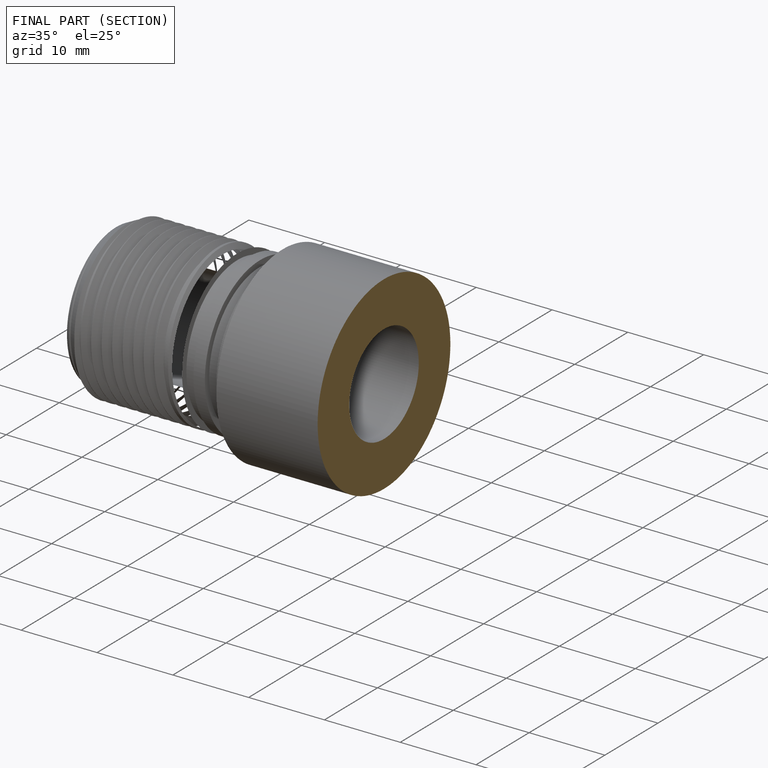
[diagram: finished part — half-section view (interior)]
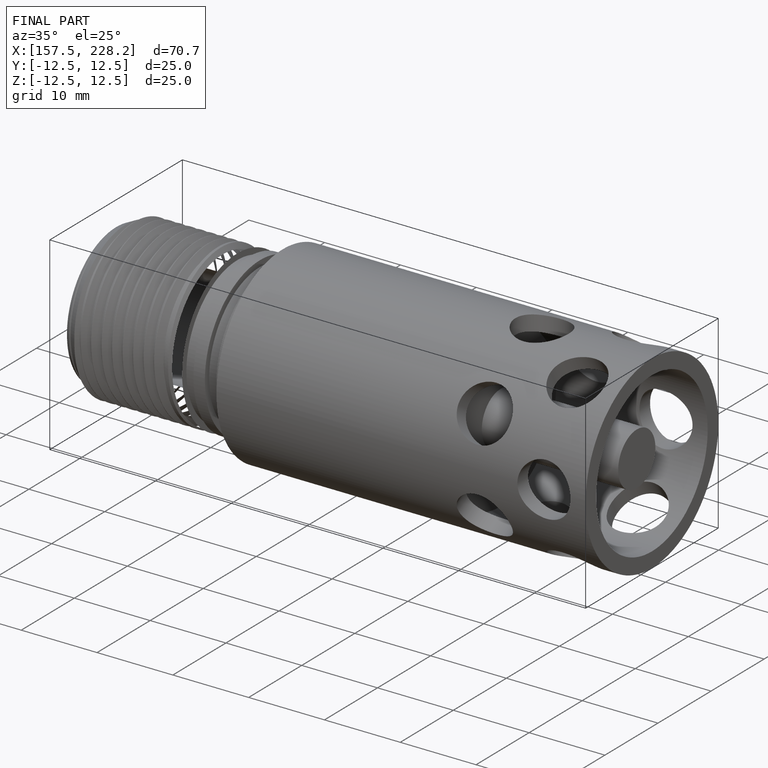
[diagram: finished part — iso view with bounding-box wireframe]
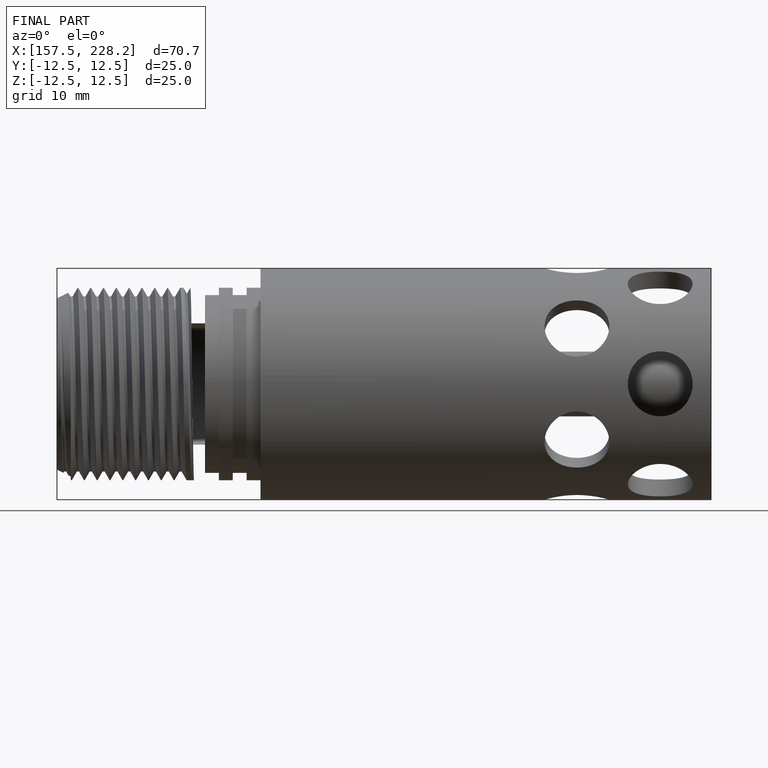
[diagram: finished part — front view with bounding-box wireframe]
